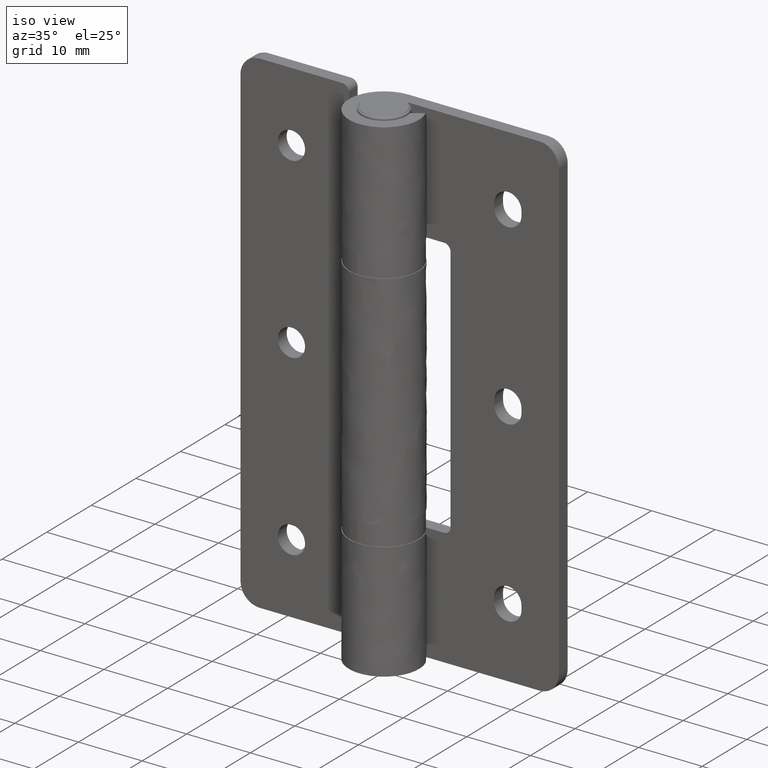
[diagram: clean part render]
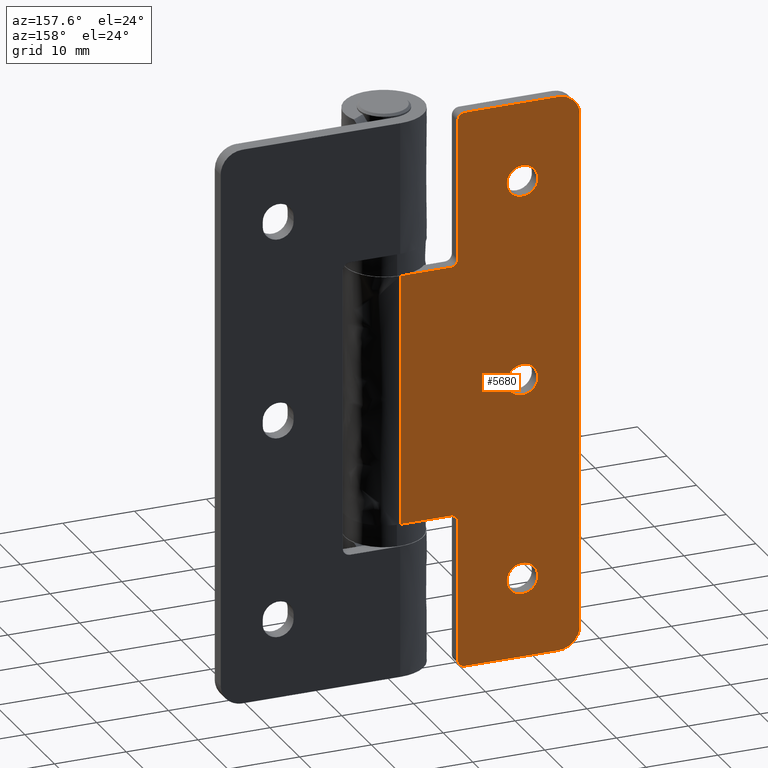
[diagram: tour spotlight — one face highlighted and labeled with its STEP entity id]
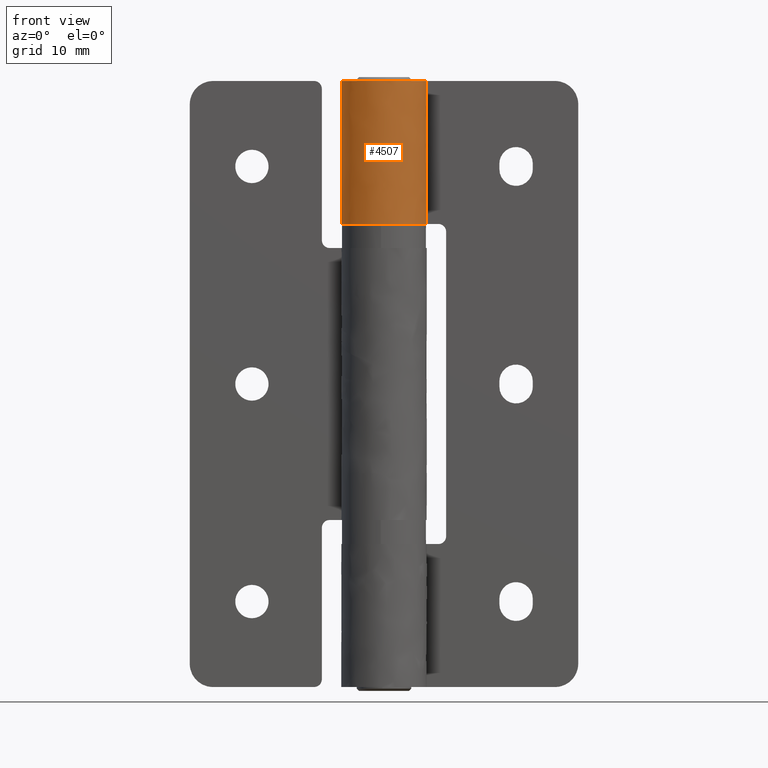
[diagram: tour spotlight — one face highlighted and labeled with its STEP entity id]
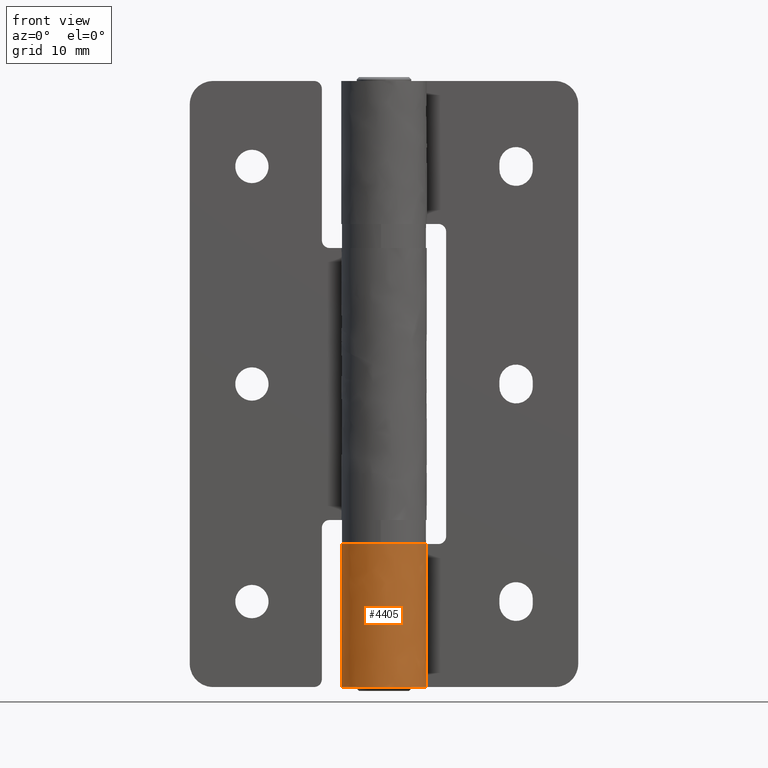
[diagram: tour spotlight — one face highlighted and labeled with its STEP entity id]
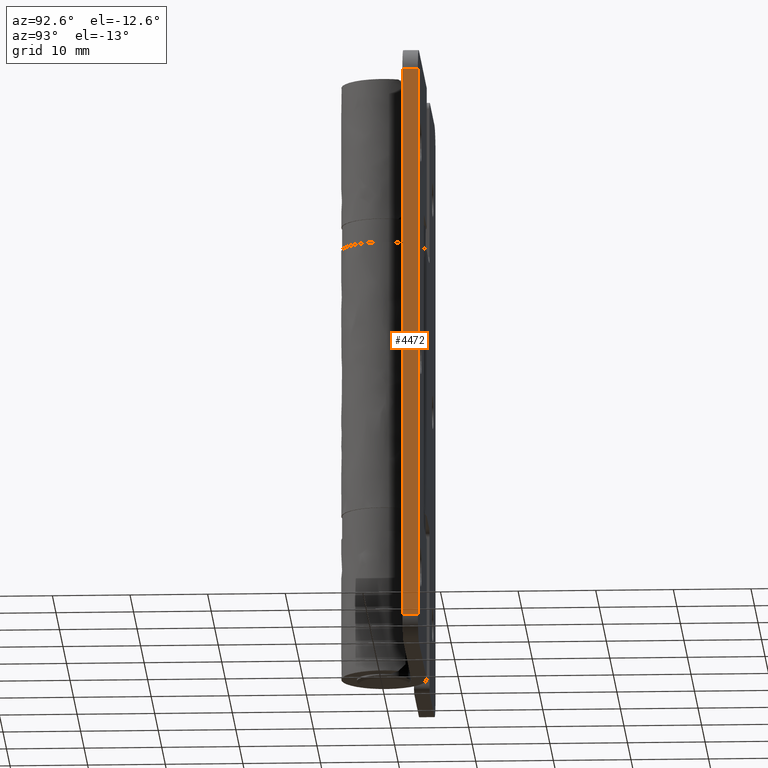
[diagram: tour spotlight — one face highlighted and labeled with its STEP entity id]
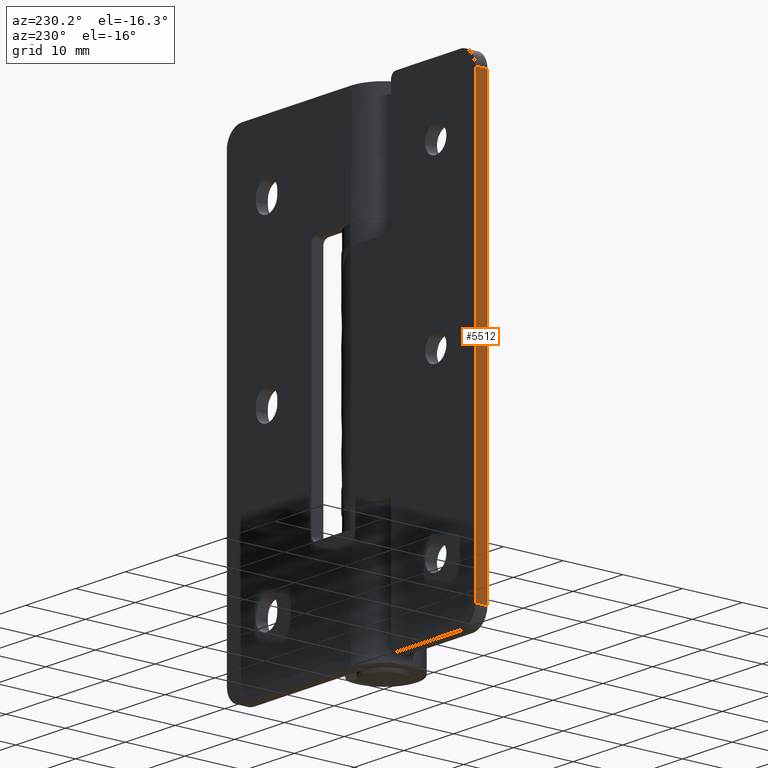
[diagram: tour spotlight — one face highlighted and labeled with its STEP entity id]
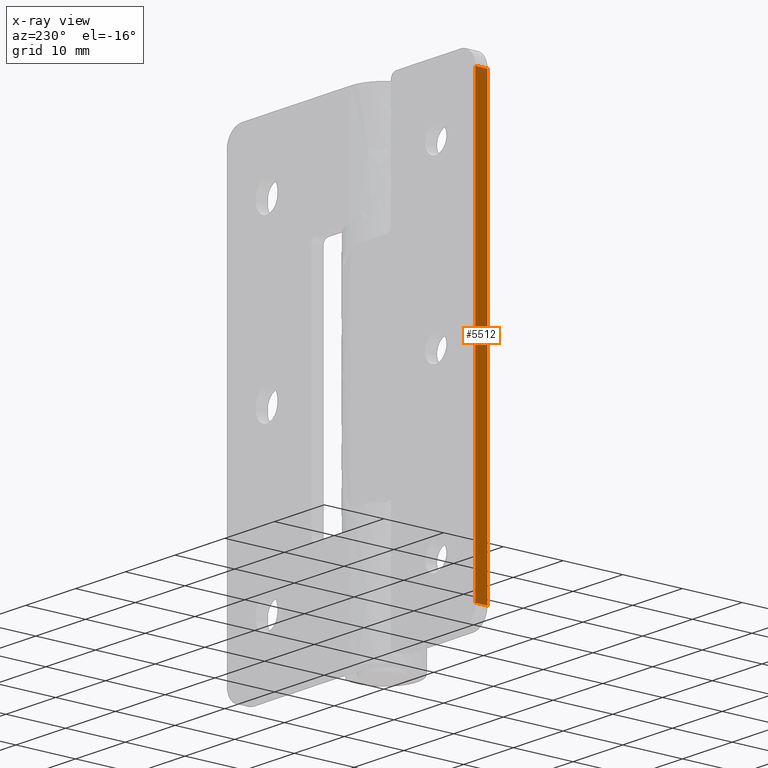
[diagram: x-ray of the same camera — body ghosted, this tour face saturated]
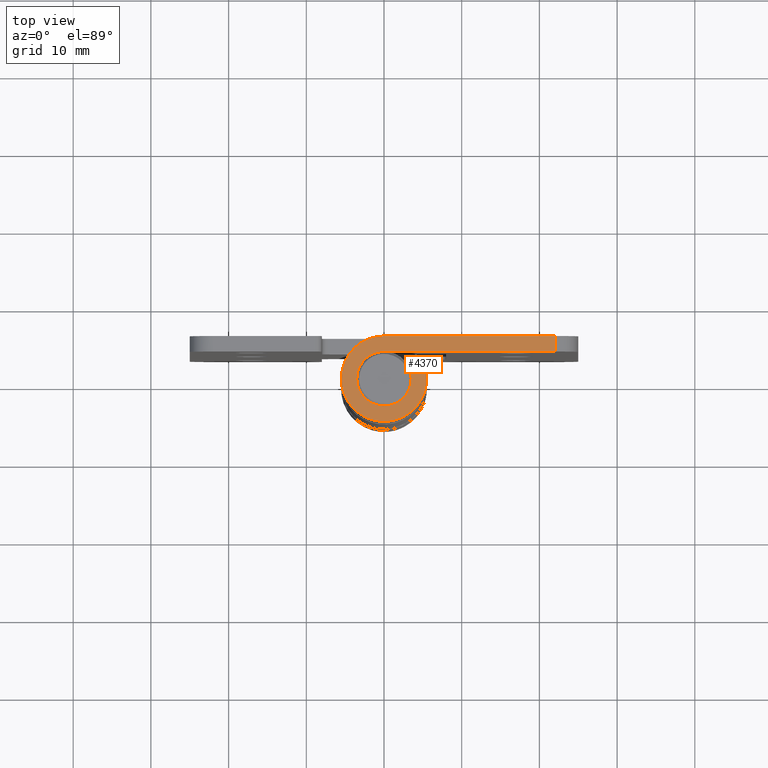
[diagram: tour spotlight — one face highlighted and labeled with its STEP entity id]
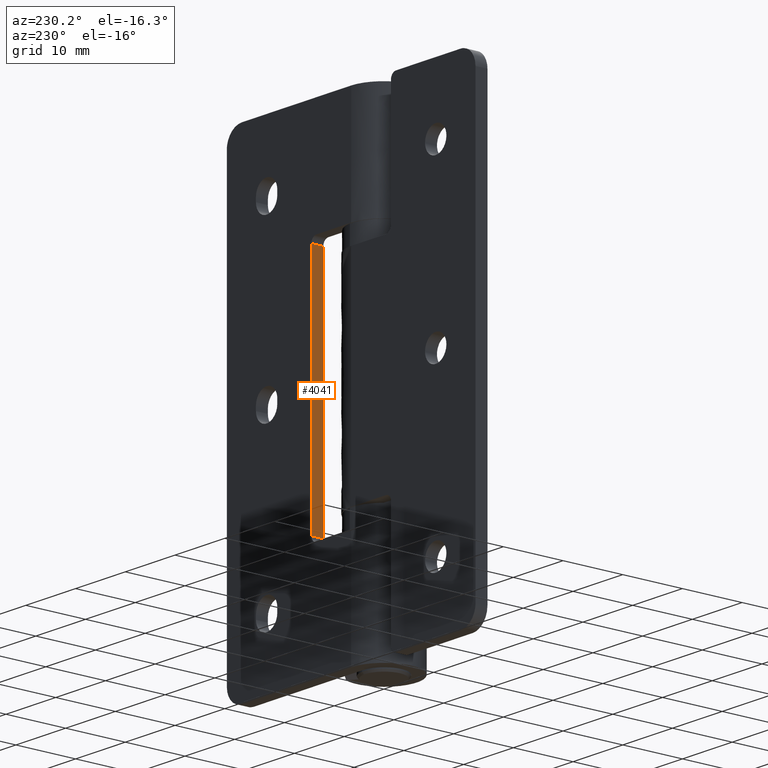
[diagram: tour spotlight — one face highlighted and labeled with its STEP entity id]
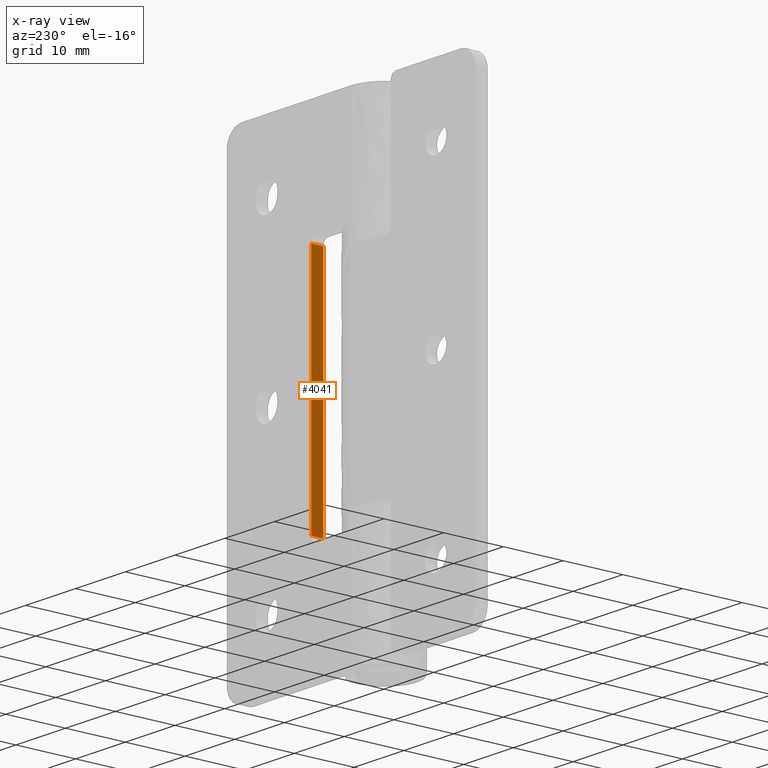
[diagram: x-ray of the same camera — body ghosted, this tour face saturated]
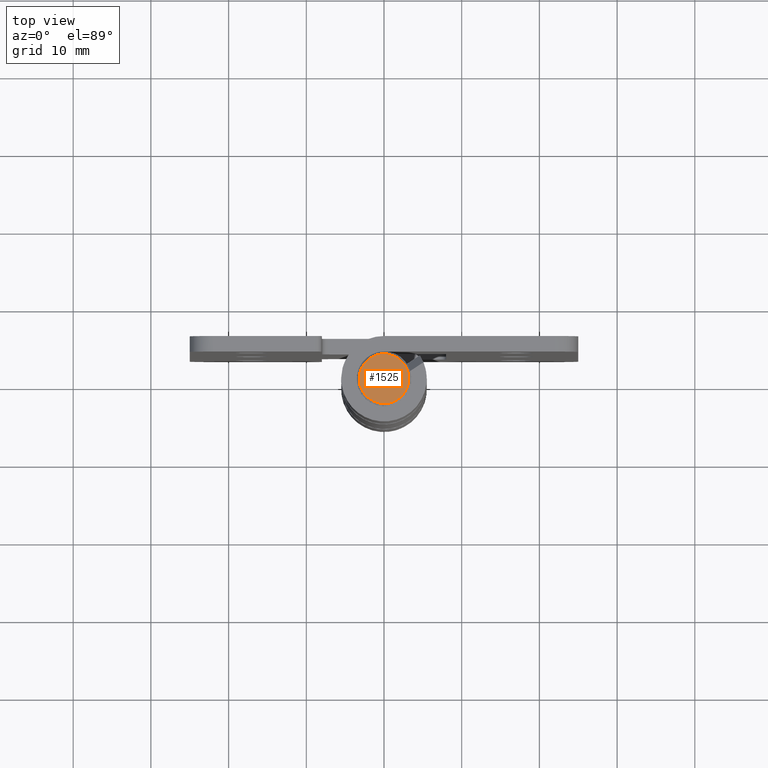
[diagram: tour spotlight — one face highlighted and labeled with its STEP entity id]
A machine part: a face-by-face anatomy tour. The part has 116 B-rep faces; the first image is the clean iso view, then the 8 largest visible faces are spotlighted one at a time (largest first), each with its STEP entity span.

Face 1 — auxiliary view, entity #5680. In plain terms, the highlighted face is a freeform B-spline surface patch.
Definition (entity closure, byte-faithful):
#4634=CARTESIAN_POINT('',(-15.603689226216559,5.500000000000229,37.365125013034572));
#4635=VERTEX_POINT('',#4634);
#4641=CARTESIAN_POINT('',(-19.149999999999999,5.500000000000229,39.0));
#4642=VERTEX_POINT('',#4641);
#4643=CARTESIAN_POINT('',(-19.149999999999999,5.500000000000229,39.0));
#4644=CARTESIAN_POINT('',(-19.150000000000389,5.500000000000229,36.850000000000463));
#4645=CARTESIAN_POINT('',(-17.000000000001219,5.500000000000230,36.850000000001430));
#4646=CARTESIAN_POINT('',(-16.206825014308439,5.500000000000230,36.850000000001792));
#4647=CARTESIAN_POINT('',(-15.603689226216561,5.500000000000230,37.365125013034572));
#4655=(BOUNDED_CURVE()B_SPLINE_CURVE(2,(#4643,#4644,#4645,#4646,#4647),.UNSPECIFIED.,.F.,.U.)B_SPLINE_CURVE_WITH_KNOTS((3,2,3),(0.500000000000000,0.750000000000000,0.863142927474642),.UNSPECIFIED.)CURVE()GEOMETRIC_REPRESENTATION_ITEM()RATIONAL_B_SPLINE_CURVE((1.0,0.707106781186547,1.0,0.867444815143900,0.854871083620292))REPRESENTATION_ITEM(''));
#4656=EDGE_CURVE('',#4642,#4635,#4655,.T.);
#4658=CARTESIAN_POINT('',(-18.396310773783451,5.500000000000229,40.634874986965428));
#4659=VERTEX_POINT('',#4658);
#4660=CARTESIAN_POINT('',(-18.396310773783448,5.500000000000230,40.634874986965428));
#4661=CARTESIAN_POINT('',(-19.149999999999167,5.500000000000230,39.991165593258131));
#4662=CARTESIAN_POINT('',(-19.149999999999999,5.500000000000229,39.0));
#4670=(BOUNDED_CURVE()B_SPLINE_CURVE(2,(#4660,#4661,#4662),.UNSPECIFIED.,.F.,.U.)B_SPLINE_CURVE_WITH_KNOTS((3,3),(0.363142927474643,0.500000000000000),.UNSPECIFIED.)CURVE()GEOMETRIC_REPRESENTATION_ITEM()RATIONAL_B_SPLINE_CURVE((0.854871083620292,0.839661966042648,1.0))REPRESENTATION_ITEM(''));
#4671=EDGE_CURVE('',#4659,#4642,#4670,.T.);
#4749=CARTESIAN_POINT('',(-14.850000000000000,5.500000000000229,39.0));
#4750=VERTEX_POINT('',#4749);
#4751=CARTESIAN_POINT('',(-14.850000000000000,5.500000000000229,39.0));
#4752=CARTESIAN_POINT('',(-14.849999999999618,5.500000000000229,41.149999999999551));
#4753=CARTESIAN_POINT('',(-16.999999999998781,5.500000000000230,41.149999999998570));
#4754=CARTESIAN_POINT('',(-17.793174985691568,5.500000000000230,41.149999999998215));
#4755=CARTESIAN_POINT('',(-18.396310773783448,5.500000000000230,40.634874986965428));
#4763=(BOUNDED_CURVE()B_SPLINE_CURVE(2,(#4751,#4752,#4753,#4754,#4755),.UNSPECIFIED.,.F.,.U.)B_SPLINE_CURVE_WITH_KNOTS((3,2,3),(0.0,0.250000000000000,0.363142927474643),.UNSPECIFIED.)CURVE()GEOMETRIC_REPRESENTATION_ITEM()RATIONAL_B_SPLINE_CURVE((1.0,0.707106781186547,1.0,0.867444815143900,0.854871083620292))REPRESENTATION_ITEM(''));
#4764=EDGE_CURVE('',#4750,#4659,#4763,.T.);
#4766=CARTESIAN_POINT('',(-15.603689226216561,5.500000000000230,37.365125013034572));
#4767=CARTESIAN_POINT('',(-14.850000000000838,5.500000000000229,38.008834406741876));
#4768=CARTESIAN_POINT('',(-14.850000000000000,5.500000000000229,39.0));
#4776=(BOUNDED_CURVE()B_SPLINE_CURVE(2,(#4766,#4767,#4768),.UNSPECIFIED.,.F.,.U.)B_SPLINE_CURVE_WITH_KNOTS((3,3),(0.863142927474642,1.0),.UNSPECIFIED.)CURVE()GEOMETRIC_REPRESENTATION_ITEM()RATIONAL_B_SPLINE_CURVE((0.854871083620292,0.839661966042648,1.0))REPRESENTATION_ITEM(''));
#4777=EDGE_CURVE('',#4635,#4750,#4776,.T.);
#4818=CARTESIAN_POINT('',(-15.603689226216551,5.500000000000229,9.365125013034573));
#4819=VERTEX_POINT('',#4818);
#4825=CARTESIAN_POINT('',(-19.149999999999999,5.500000000000229,11.0));
#4826=VERTEX_POINT('',#4825);
#4827=CARTESIAN_POINT('',(-19.149999999999999,5.500000000000229,11.0));
#4828=CARTESIAN_POINT('',(-19.150000000000389,5.500000000000229,8.850000000000451));
#4829=CARTESIAN_POINT('',(-17.000000000001219,5.500000000000230,8.850000000001430));
#4830=CARTESIAN_POINT('',(-16.206825014308439,5.500000000000230,8.850000000001787));
#4831=CARTESIAN_POINT('',(-15.603689226216549,5.500000000000230,9.365125013034573));
#4839=(BOUNDED_CURVE()B_SPLINE_CURVE(2,(#4827,#4828,#4829,#4830,#4831),.UNSPECIFIED.,.F.,.U.)B_SPLINE_CURVE_WITH_KNOTS((3,2,3),(0.500000000000000,0.750000000000000,0.863142927474643),.UNSPECIFIED.)CURVE()GEOMETRIC_REPRESENTATION_ITEM()RATIONAL_B_SPLINE_CURVE((1.0,0.707106781186547,1.0,0.867444815143900,0.854871083620292))REPRESENTATION_ITEM(''));
#4840=EDGE_CURVE('',#4826,#4819,#4839,.T.);
#4842=CARTESIAN_POINT('',(-18.396310773783451,5.500000000000229,12.634874986965430));
#4843=VERTEX_POINT('',#4842);
#4844=CARTESIAN_POINT('',(-18.396310773783448,5.500000000000229,12.634874986965428));
#4845=CARTESIAN_POINT('',(-19.149999999999164,5.500000000000228,11.991165593258120));
#4846=CARTESIAN_POINT('',(-19.149999999999999,5.500000000000229,11.0));
#4854=(BOUNDED_CURVE()B_SPLINE_CURVE(2,(#4844,#4845,#4846),.UNSPECIFIED.,.F.,.U.)B_SPLINE_CURVE_WITH_KNOTS((3,3),(0.363142927474643,0.500000000000000),.UNSPECIFIED.)CURVE()GEOMETRIC_REPRESENTATION_ITEM()RATIONAL_B_SPLINE_CURVE((0.854871083620292,0.839661966042648,1.0))REPRESENTATION_ITEM(''));
#4855=EDGE_CURVE('',#4843,#4826,#4854,.T.);
#4934=CARTESIAN_POINT('',(-14.850000000000000,5.500000000000229,11.0));
#4935=VERTEX_POINT('',#4934);
#4936=CARTESIAN_POINT('',(-14.850000000000000,5.500000000000229,11.0));
#4937=CARTESIAN_POINT('',(-14.849999999999618,5.500000000000229,13.149999999999547));
#4938=CARTESIAN_POINT('',(-16.999999999998781,5.500000000000229,13.149999999998570));
#4939=CARTESIAN_POINT('',(-17.793174985691564,5.500000000000229,13.149999999998208));
#4940=CARTESIAN_POINT('',(-18.396310773783448,5.500000000000229,12.634874986965428));
#4948=(BOUNDED_CURVE()B_SPLINE_CURVE(2,(#4936,#4937,#4938,#4939,#4940),.UNSPECIFIED.,.F.,.U.)B_SPLINE_CURVE_WITH_KNOTS((3,2,3),(0.0,0.250000000000000,0.363142927474643),.UNSPECIFIED.)CURVE()GEOMETRIC_REPRESENTATION_ITEM()RATIONAL_B_SPLINE_CURVE((1.0,0.707106781186547,1.0,0.867444815143899,0.854871083620292))REPRESENTATION_ITEM(''));
#4949=EDGE_CURVE('',#4935,#4843,#4948,.T.);
#4951=CARTESIAN_POINT('',(-15.603689226216549,5.500000000000230,9.365125013034573));
#4952=CARTESIAN_POINT('',(-14.850000000000845,5.500000000000230,10.008834406741876));
#4953=CARTESIAN_POINT('',(-14.850000000000000,5.500000000000229,11.0));
#4961=(BOUNDED_CURVE()B_SPLINE_CURVE(2,(#4951,#4952,#4953),.UNSPECIFIED.,.F.,.U.)B_SPLINE_CURVE_WITH_KNOTS((3,3),(0.863142927474643,1.0),.UNSPECIFIED.)CURVE()GEOMETRIC_REPRESENTATION_ITEM()RATIONAL_B_SPLINE_CURVE((0.854871083620292,0.839661966042648,1.0))REPRESENTATION_ITEM(''));
#4962=EDGE_CURVE('',#4819,#4935,#4961,.T.);
#5003=CARTESIAN_POINT('',(-15.603689226216559,5.500000000000229,65.365125013034572));
#5004=VERTEX_POINT('',#5003);
#5010=CARTESIAN_POINT('',(-19.149999999999999,5.500000000000229,67.0));
#5011=VERTEX_POINT('',#5010);
#5012=CARTESIAN_POINT('',(-19.149999999999999,5.500000000000229,67.0));
#5013=CARTESIAN_POINT('',(-19.150000000000389,5.500000000000229,64.850000000000463));
#5014=CARTESIAN_POINT('',(-17.000000000001219,5.500000000000230,64.850000000001444));
#5015=CARTESIAN_POINT('',(-16.206825014308439,5.500000000000230,64.850000000001799));
#5016=CARTESIAN_POINT('',(-15.603689226216561,5.500000000000230,65.365125013034572));
#5024=(BOUNDED_CURVE()B_SPLINE_CURVE(2,(#5012,#5013,#5014,#5015,#5016),.UNSPECIFIED.,.F.,.U.)B_SPLINE_CURVE_WITH_KNOTS((3,2,3),(0.500000000000000,0.750000000000000,0.863142927474642),.UNSPECIFIED.)CURVE()GEOMETRIC_REPRESENTATION_ITEM()RATIONAL_B_SPLINE_CURVE((1.0,0.707106781186547,1.0,0.867444815143900,0.854871083620292))REPRESENTATION_ITEM(''));
#5025=EDGE_CURVE('',#5011,#5004,#5024,.T.);
#5027=CARTESIAN_POINT('',(-18.396310773783451,5.500000000000229,68.634874986965428));
#5028=VERTEX_POINT('',#5027);
#5029=CARTESIAN_POINT('',(-18.396310773783451,5.500000000000230,68.634874986965428));
#5030=CARTESIAN_POINT('',(-19.149999999999157,5.500000000000229,67.991165593258117));
#5031=CARTESIAN_POINT('',(-19.149999999999999,5.500000000000229,67.0));
#5039=(BOUNDED_CURVE()B_SPLINE_CURVE(2,(#5029,#5030,#5031),.UNSPECIFIED.,.F.,.U.)B_SPLINE_CURVE_WITH_KNOTS((3,3),(0.363142927474644,0.500000000000000),.UNSPECIFIED.)CURVE()GEOMETRIC_REPRESENTATION_ITEM()RATIONAL_B_SPLINE_CURVE((0.854871083620292,0.839661966042649,1.0))REPRESENTATION_ITEM(''));
#5040=EDGE_CURVE('',#5028,#5011,#5039,.T.);
#5119=CARTESIAN_POINT('',(-14.850000000000000,5.500000000000229,67.0));
#5120=VERTEX_POINT('',#5119);
#5121=CARTESIAN_POINT('',(-14.850000000000000,5.500000000000229,67.0));
#5122=CARTESIAN_POINT('',(-14.849999999999618,5.500000000000229,69.149999999999551));
#5123=CARTESIAN_POINT('',(-16.999999999998771,5.500000000000228,69.149999999998585));
#5124=CARTESIAN_POINT('',(-17.793174985691564,5.500000000000228,69.149999999998229));
#5125=CARTESIAN_POINT('',(-18.396310773783451,5.500000000000230,68.634874986965428));
#5133=(BOUNDED_CURVE()B_SPLINE_CURVE(2,(#5121,#5122,#5123,#5124,#5125),.UNSPECIFIED.,.F.,.U.)B_SPLINE_CURVE_WITH_KNOTS((3,2,3),(0.0,0.250000000000000,0.363142927474644),.UNSPECIFIED.)CURVE()GEOMETRIC_REPRESENTATION_ITEM()RATIONAL_B_SPLINE_CURVE((1.0,0.707106781186547,1.0,0.867444815143899,0.854871083620292))REPRESENTATION_ITEM(''));
#5134=EDGE_CURVE('',#5120,#5028,#5133,.T.);
#5136=CARTESIAN_POINT('',(-15.603689226216561,5.500000000000230,65.365125013034572));
#5137=CARTESIAN_POINT('',(-14.850000000000838,5.500000000000229,66.008834406741883));
#5138=CARTESIAN_POINT('',(-14.850000000000000,5.500000000000229,67.0));
#5146=(BOUNDED_CURVE()B_SPLINE_CURVE(2,(#5136,#5137,#5138),.UNSPECIFIED.,.F.,.U.)B_SPLINE_CURVE_WITH_KNOTS((3,3),(0.863142927474642,1.0),.UNSPECIFIED.)CURVE()GEOMETRIC_REPRESENTATION_ITEM()RATIONAL_B_SPLINE_CURVE((0.854871083620292,0.839661966042648,1.0))REPRESENTATION_ITEM(''));
#5147=EDGE_CURVE('',#5004,#5120,#5146,.T.);
#5184=CARTESIAN_POINT('',(-9.0,5.500000000000229,0.0));
#5185=VERTEX_POINT('',#5184);
#5191=CARTESIAN_POINT('',(-8.0,5.500000000000229,0.999999999999915));
#5192=VERTEX_POINT('',#5191);
#5193=CARTESIAN_POINT('',(-8.0,5.500000000000229,0.999999999999915));
#5194=CARTESIAN_POINT('',(-8.0,5.500000000000279,-8.500145E-014));
#5195=CARTESIAN_POINT('',(-9.0,5.500000000000280,-8.500145E-014));
#5203=(BOUNDED_CURVE()B_SPLINE_CURVE(2,(#5193,#5194,#5195),.UNSPECIFIED.,.F.,.U.)CURVE()GEOMETRIC_REPRESENTATION_ITEM()QUASI_UNIFORM_CURVE()RATIONAL_B_SPLINE_CURVE((1.0,0.707106781186548,1.0))REPRESENTATION_ITEM(''));
#5204=EDGE_CURVE('',#5192,#5185,#5203,.T.);
#5245=CARTESIAN_POINT('',(-8.0,5.500000000000229,77.0));
#5246=VERTEX_POINT('',#5245);
#5252=CARTESIAN_POINT('',(-9.0,5.500000000000229,78.0));
#5253=VERTEX_POINT('',#5252);
#5254=CARTESIAN_POINT('',(-9.0,5.500000000000229,78.0));
#5255=CARTESIAN_POINT('',(-8.0,5.500000000000229,78.0));
#5256=CARTESIAN_POINT('',(-8.0,5.500000000000229,77.0));
#5264=(BOUNDED_CURVE()B_SPLINE_CURVE(2,(#5254,#5255,#5256),.UNSPECIFIED.,.F.,.U.)CURVE()GEOMETRIC_REPRESENTATION_ITEM()QUASI_UNIFORM_CURVE()RATIONAL_B_SPLINE_CURVE((1.0,0.707106781186548,1.0))REPRESENTATION_ITEM(''));
#5265=EDGE_CURVE('',#5253,#5246,#5264,.T.);
#5289=CARTESIAN_POINT('',(-25.0,5.500000000000229,75.0));
#5290=VERTEX_POINT('',#5289);
#5291=CARTESIAN_POINT('',(-22.000000000000249,5.500000000000229,78.0));
#5292=VERTEX_POINT('',#5291);
#5293=CARTESIAN_POINT('',(-25.0,5.500000000000229,75.0));
#5294=CARTESIAN_POINT('',(-25.000000000000256,5.500000000000229,78.0));
#5295=CARTESIAN_POINT('',(-22.000000000000249,5.500000000000229,78.0));
#5303=(BOUNDED_CURVE()B_SPLINE_CURVE(2,(#5293,#5294,#5295),.UNSPECIFIED.,.F.,.U.)CURVE()GEOMETRIC_REPRESENTATION_ITEM()QUASI_UNIFORM_CURVE()RATIONAL_B_SPLINE_CURVE((1.0,0.707106781186548,1.0))REPRESENTATION_ITEM(''));
#5304=EDGE_CURVE('',#5290,#5292,#5303,.T.);
#5350=CARTESIAN_POINT('',(-22.000000000000249,5.500000000000229,0.0));
#5351=VERTEX_POINT('',#5350);
#5352=CARTESIAN_POINT('',(-25.0,5.500000000000229,2.999999999999890));
#5353=VERTEX_POINT('',#5352);
#5354=CARTESIAN_POINT('',(-22.000000000000249,5.500000000000229,0.0));
#5355=CARTESIAN_POINT('',(-25.000000000000256,5.500000000000229,-1.101549E-013));
#5356=CARTESIAN_POINT('',(-25.000000000000249,5.500000000000229,2.999999999999890));
#5364=(BOUNDED_CURVE()B_SPLINE_CURVE(2,(#5354,#5355,#5356),.UNSPECIFIED.,.F.,.U.)CURVE()GEOMETRIC_REPRESENTATION_ITEM()QUASI_UNIFORM_CURVE()RATIONAL_B_SPLINE_CURVE((1.0,0.707106781186548,1.0))REPRESENTATION_ITEM(''));
#5365=EDGE_CURVE('',#5351,#5353,#5364,.T.);
#5410=CARTESIAN_POINT('',(-8.0,5.500000000000229,20.500000000000298));
#5411=VERTEX_POINT('',#5410);
#5412=CARTESIAN_POINT('',(-8.0,5.500000000000229,0.999999999999915));
#5413=CARTESIAN_POINT('',(-8.0,5.500000000000229,20.500000000000298));
#5414=QUASI_UNIFORM_CURVE('',1,(#5412,#5413),.UNSPECIFIED.,.F.,.U.);
#5415=EDGE_CURVE('',#5192,#5411,#5414,.T.);
#5430=CARTESIAN_POINT('',(-8.0,5.500000000000229,57.500000000000000));
#5431=VERTEX_POINT('',#5430);
#5432=CARTESIAN_POINT('',(-8.0,5.500000000000229,57.500000000000000));
#5433=CARTESIAN_POINT('',(-8.0,5.500000000000229,77.0));
#5434=QUASI_UNIFORM_CURVE('',1,(#5432,#5433),.UNSPECIFIED.,.F.,.U.);
#5435=EDGE_CURVE('',#5431,#5246,#5434,.T.);
#5458=CARTESIAN_POINT('',(-9.0,5.500000000000229,0.0));
#5459=CARTESIAN_POINT('',(-22.000000000000249,5.500000000000229,0.0));
#5460=QUASI_UNIFORM_CURVE('',1,(#5458,#5459),.UNSPECIFIED.,.F.,.U.);
#5461=EDGE_CURVE('',#5185,#5351,#5460,.T.);
#5484=CARTESIAN_POINT('',(-9.0,5.500000000000229,78.0));
#5485=CARTESIAN_POINT('',(-22.000000000000249,5.500000000000229,78.0));
#5486=QUASI_UNIFORM_CURVE('',1,(#5484,#5485),.UNSPECIFIED.,.F.,.U.);
#5487=EDGE_CURVE('',#5253,#5292,#5486,.T.);
#5498=CARTESIAN_POINT('',(-25.0,5.500000000000229,75.0));
#5499=CARTESIAN_POINT('',(-25.0,5.500000000000229,2.999999999999890));
#5500=QUASI_UNIFORM_CURVE('',1,(#5498,#5499),.UNSPECIFIED.,.F.,.U.);
#5501=EDGE_CURVE('',#5290,#5353,#5500,.T.);
#5597=CARTESIAN_POINT('',(-26.248749951545140,5.500000000000229,81.896099848820882));
#5598=CARTESIAN_POINT('',(-26.248749951545140,5.500000000000229,-3.896101940943893));
#5599=CARTESIAN_POINT('',(1.248750622097164,5.500000000000229,81.896099848820867));
#5600=CARTESIAN_POINT('',(1.248750622097164,5.500000000000229,-3.896101940943893));
#5601=B_SPLINE_SURFACE_WITH_KNOTS('',1,1,((#5597,#5599),(#5598,#5600)),.UNSPECIFIED.,.F.,.F.,.U.,(2,2),(2,2),(0.0,85.792201789764775),(0.0,27.497500573642299),.UNSPECIFIED.);
#5602=ORIENTED_EDGE('',*,*,#5487,.F.);
#5603=ORIENTED_EDGE('',*,*,#5265,.T.);
#5604=ORIENTED_EDGE('',*,*,#5435,.F.);
#5605=CARTESIAN_POINT('',(-7.0,5.500000000000229,56.500000000000000));
#5606=VERTEX_POINT('',#5605);
#5607=CARTESIAN_POINT('',(-8.0,5.500000000000280,57.500000000000000));
#5608=CARTESIAN_POINT('',(-8.0,5.500000000000279,56.500000000000000));
#5609=CARTESIAN_POINT('',(-7.0,5.500000000000280,56.500000000000000));
#5617=(BOUNDED_CURVE()B_SPLINE_CURVE(2,(#5607,#5608,#5609),.UNSPECIFIED.,.F.,.U.)CURVE()GEOMETRIC_REPRESENTATION_ITEM()QUASI_UNIFORM_CURVE()RATIONAL_B_SPLINE_CURVE((1.0,0.707106781186548,1.0))REPRESENTATION_ITEM(''));
#5618=EDGE_CURVE('',#5431,#5606,#5617,.T.);
#5619=ORIENTED_EDGE('',*,*,#5618,.T.);
#5620=CARTESIAN_POINT('',(-2.273737E-013,5.500000000000229,56.500000000000000));
#5621=VERTEX_POINT('',#5620);
#5622=CARTESIAN_POINT('',(-2.273737E-013,5.500000000000229,56.500000000000000));
#5623=CARTESIAN_POINT('',(-7.0,5.500000000000229,56.500000000000000));
#5624=QUASI_UNIFORM_CURVE('',1,(#5622,#5623),.UNSPECIFIED.,.F.,.U.);
#5625=EDGE_CURVE('',#5621,#5606,#5624,.T.);
#5626=ORIENTED_EDGE('',*,*,#5625,.F.);
#5627=CARTESIAN_POINT('',(-2.273737E-013,5.500000000000229,21.500000000000298));
#5628=VERTEX_POINT('',#5627);
#5629=CARTESIAN_POINT('',(-2.273737E-013,5.500000000000229,56.500000000000000));
#5630=CARTESIAN_POINT('',(-2.273737E-013,5.500000000000229,21.500000000000298));
#5631=QUASI_UNIFORM_CURVE('',1,(#5629,#5630),.UNSPECIFIED.,.F.,.U.);
#5632=EDGE_CURVE('',#5621,#5628,#5631,.T.);
#5633=ORIENTED_EDGE('',*,*,#5632,.T.);
#5634=CARTESIAN_POINT('',(-7.0,5.500000000000229,21.500000000000298));
#5635=VERTEX_POINT('',#5634);
#5636=CARTESIAN_POINT('',(-7.0,5.500000000000229,21.500000000000298));
#5637=CARTESIAN_POINT('',(-2.273737E-013,5.500000000000229,21.500000000000298));
#5638=QUASI_UNIFORM_CURVE('',1,(#5636,#5637),.UNSPECIFIED.,.F.,.U.);
#5639=EDGE_CURVE('',#5635,#5628,#5638,.T.);
#5640=ORIENTED_EDGE('',*,*,#5639,.F.);
#5641=CARTESIAN_POINT('',(-7.0,5.500000000000229,21.500000000000298));
#5642=CARTESIAN_POINT('',(-8.0,5.500000000000279,21.500000000000291));
#5643=CARTESIAN_POINT('',(-8.0,5.500000000000280,20.500000000000298));
#5651=(BOUNDED_CURVE()B_SPLINE_CURVE(2,(#5641,#5642,#5643),.UNSPECIFIED.,.F.,.U.)CURVE()GEOMETRIC_REPRESENTATION_ITEM()QUASI_UNIFORM_CURVE()RATIONAL_B_SPLINE_CURVE((1.0,0.707106781186548,1.0))REPRESENTATION_ITEM(''));
#5652=EDGE_CURVE('',#5635,#5411,#5651,.T.);
#5653=ORIENTED_EDGE('',*,*,#5652,.T.);
#5654=ORIENTED_EDGE('',*,*,#5415,.F.);
#5655=ORIENTED_EDGE('',*,*,#5204,.T.);
#5656=ORIENTED_EDGE('',*,*,#5461,.T.);
#5657=ORIENTED_EDGE('',*,*,#5365,.T.);
#5658=ORIENTED_EDGE('',*,*,#5501,.F.);
#5659=ORIENTED_EDGE('',*,*,#5304,.T.);
#5660=EDGE_LOOP('',(#5602,#5603,#5604,#5619,#5626,#5633,#5640,#5653,#5654,#5655,#5656,#5657,#5658,#5659));
#5661=FACE_OUTER_BOUND('',#5660,.T.);
#5662=ORIENTED_EDGE('',*,*,#5134,.T.);
#5663=ORIENTED_EDGE('',*,*,#5040,.T.);
#5664=ORIENTED_EDGE('',*,*,#5025,.T.);
#5665=ORIENTED_EDGE('',*,*,#5147,.T.);
#5666=EDGE_LOOP('',(#5662,#5663,#5664,#5665));
#5667=FACE_BOUND('',#5666,.T.);
#5668=ORIENTED_EDGE('',*,*,#4949,.T.);
#5669=ORIENTED_EDGE('',*,*,#4855,.T.);
#5670=ORIENTED_EDGE('',*,*,#4840,.T.);
#5671=ORIENTED_EDGE('',*,*,#4962,.T.);
#5672=EDGE_LOOP('',(#5668,#5669,#5670,#5671));
#5673=FACE_BOUND('',#5672,.T.);
#5674=ORIENTED_EDGE('',*,*,#4764,.T.);
#5675=ORIENTED_EDGE('',*,*,#4671,.T.);
#5676=ORIENTED_EDGE('',*,*,#4656,.T.);
#5677=ORIENTED_EDGE('',*,*,#4777,.T.);
#5678=EDGE_LOOP('',(#5674,#5675,#5676,#5677));
#5679=FACE_BOUND('',#5678,.T.);
#5680=ADVANCED_FACE('',(#5661,#5667,#5673,#5679),#5601,.F.);

Face 2 — front view, entity #4507. In plain terms, the highlighted face is a freeform B-spline surface patch.
Definition (entity closure, byte-faithful):
#2987=CARTESIAN_POINT('',(-1.010298E-015,5.500000000000229,59.600000000000001));
#2988=VERTEX_POINT('',#2987);
#2994=CARTESIAN_POINT('',(-1.010300E-015,5.500000000000000,78.0));
#2995=VERTEX_POINT('',#2994);
#2996=CARTESIAN_POINT('',(-1.010300E-015,5.500000000000000,78.0));
#2997=CARTESIAN_POINT('',(-1.010298E-015,5.500000000000229,59.600000000000001));
#2998=QUASI_UNIFORM_CURVE('',1,(#2996,#2997),.UNSPECIFIED.,.F.,.U.);
#2999=EDGE_CURVE('',#2995,#2988,#2998,.T.);
#3228=CARTESIAN_POINT('',(5.078391855980350,2.111856092898495,78.0));
#3229=VERTEX_POINT('',#3228);
#3235=CARTESIAN_POINT('',(4.609772228646420,3.000000000000035,77.0));
#3236=VERTEX_POINT('',#3235);
#3237=CARTESIAN_POINT('',(4.609772228646436,3.000000000000013,77.0));
#3238=CARTESIAN_POINT('',(4.884791489058476,2.577407950336580,77.504201977422099));
#3239=CARTESIAN_POINT('',(5.078391855980344,2.111856092898499,78.000000000000014));
#3247=(BOUNDED_CURVE()B_SPLINE_CURVE(2,(#3237,#3238,#3239),.UNSPECIFIED.,.F.,.U.)CURVE()GEOMETRIC_REPRESENTATION_ITEM()QUASI_UNIFORM_CURVE()RATIONAL_B_SPLINE_CURVE((1.0,0.995824323371273,1.0))REPRESENTATION_ITEM(''));
#3248=EDGE_CURVE('',#3236,#3229,#3247,.T.);
#3332=CARTESIAN_POINT('',(4.609772228646420,3.000000000000035,60.600000000000001));
#3333=VERTEX_POINT('',#3332);
#3339=CARTESIAN_POINT('',(5.078391855980420,2.111856092898340,59.600000000000001));
#3340=VERTEX_POINT('',#3339);
#3341=CARTESIAN_POINT('',(5.078391855980376,2.111856092898421,59.599999999999909));
#3342=CARTESIAN_POINT('',(4.884791489058486,2.577407950336573,60.095798022577867));
#3343=CARTESIAN_POINT('',(4.609772228646401,3.000000000000065,60.600000000000001));
#3351=(BOUNDED_CURVE()B_SPLINE_CURVE(2,(#3341,#3342,#3343),.UNSPECIFIED.,.F.,.U.)CURVE()GEOMETRIC_REPRESENTATION_ITEM()QUASI_UNIFORM_CURVE()RATIONAL_B_SPLINE_CURVE((1.0,0.995824323371236,1.0))REPRESENTATION_ITEM(''));
#3352=EDGE_CURVE('',#3340,#3333,#3351,.T.);
#4164=CARTESIAN_POINT('',(-1.010298E-015,5.500000000000229,59.600000000000001));
#4165=CARTESIAN_POINT('',(-0.566870908820096,5.500319323415684,59.600000000000151));
#4166=CARTESIAN_POINT('',(-1.426049190043263,5.365892515354370,59.599999999999937));
#4167=CARTESIAN_POINT('',(-2.563254246476472,4.899781130820440,59.599999999999731));
#4168=CARTESIAN_POINT('',(-3.337544757026490,4.405127884861921,59.600000000000890));
#4169=CARTESIAN_POINT('',(-4.015537949657388,3.788446514830869,59.599999999998921));
#4170=CARTESIAN_POINT('',(-4.513425928891483,3.176690755691426,59.600000000000328));
#4171=CARTESIAN_POINT('',(-4.964511727736221,2.421671078968893,59.600000000000087));
#4172=CARTESIAN_POINT('',(-5.304273954458707,1.568498734419569,59.600000000000009));
#4173=CARTESIAN_POINT('',(-5.478048132799610,0.685874798277560,59.599999999999980));
#4174=CARTESIAN_POINT('',(-5.522460179914042,-0.302313962339906,59.599999999999987));
#4175=CARTESIAN_POINT('',(-5.386459974170384,-1.306034635886265,59.600000000000072));
#4176=CARTESIAN_POINT('',(-5.040802096079391,-2.255277352931479,59.599999999999980));
#4177=CARTESIAN_POINT('',(-4.598712223335083,-3.057421320270615,59.599999999999987));
#4178=CARTESIAN_POINT('',(-4.025680772076812,-3.798420721270719,59.599999999999987));
#4179=CARTESIAN_POINT('',(-3.250672952281020,-4.475404005859986,59.600000000000001));
#4180=CARTESIAN_POINT('',(-2.444841627442906,-4.951302789805934,59.600000000000023));
#4181=CARTESIAN_POINT('',(-1.661491541073445,-5.263193312704070,59.599999999999952));
#4182=CARTESIAN_POINT('',(-0.930237493609089,-5.437717265173488,59.600000000000037));
#4183=CARTESIAN_POINT('',(-0.110013686355602,-5.519732494675481,59.600000000000023));
#4184=CARTESIAN_POINT('',(0.660086749456795,-5.481232649508733,59.599999999999973));
#4185=CARTESIAN_POINT('',(1.539853883930143,-5.303285967048876,59.600000000000037));
#4186=CARTESIAN_POINT('',(2.383998093836078,-4.991198142569481,59.599999999999973));
#4187=CARTESIAN_POINT('',(3.203442884959564,-4.501439089021388,59.600000000000023));
#4188=CARTESIAN_POINT('',(3.972705675870018,-3.849296693376112,59.599999999999973));
#4189=CARTESIAN_POINT('',(4.506774425614577,-3.192982295056920,59.600000000000087));
#4190=CARTESIAN_POINT('',(4.968190633140786,-2.402629252512812,59.599999999999810));
#4191=CARTESIAN_POINT('',(5.288526538587220,-1.620811783330258,59.600000000000669));
#4192=CARTESIAN_POINT('',(5.471013606055839,-0.739930213427775,59.599999999999049));
#4193=CARTESIAN_POINT('',(5.522136037940106,0.192887773385943,59.600000000001593));
#4194=CARTESIAN_POINT('',(5.419338167230701,1.124876735270279,59.599999999997571));
#4195=CARTESIAN_POINT('',(5.204787472151589,1.807967334772823,59.600000000000321));
#4196=CARTESIAN_POINT('',(5.078391855980420,2.111856092898340,59.600000000000001));
#4197=B_SPLINE_CURVE_WITH_KNOTS('',3,(#4164,#4165,#4166,#4167,#4168,#4169,#4170,#4171,#4172,#4173,#4174,#4175,#4176,#4177,#4178,#4179,#4180,#4181,#4182,#4183,#4184,#4185,#4186,#4187,#4188,#4189,#4190,#4191,#4192,#4193,#4194,#4195,#4196),.UNSPECIFIED.,.F.,.U.,(4,1,1,1,1,1,1,1,1,1,1,1,1,1,1,1,1,1,1,1,1,1,1,1,1,1,1,1,1,1,4),(0.000000355150373,1.700478181514828,2.578173556885151,3.675291127794985,4.443275964609637,5.320968830674374,6.034061038941577,7.076260071766669,8.063655349210649,8.721939374777332,10.038472465980480,11.080723254989209,11.739001591012460,12.781259976688110,13.878339298349159,14.810824753399670,15.578803474859191,16.401656745971540,17.059912853755261,18.047319846976070,18.705575955810630,19.747829261468919,20.735222232527349,21.558019999283982,22.764817899354892,23.258534234928280,24.300785010284120,25.288180601504859,25.946460450075069,27.098399105080919,28.085784939907459),.UNSPECIFIED.);
#4198=EDGE_CURVE('',#2988,#3340,#4197,.T.);
#4296=CARTESIAN_POINT('',(-1.010300E-015,5.500000000000000,78.0));
#4297=CARTESIAN_POINT('',(-0.475413707816759,5.500152063646950,78.000000000000043));
#4298=CARTESIAN_POINT('',(-1.261590357472479,5.397390236359740,77.999999999999986));
#4299=CARTESIAN_POINT('',(-2.177153610927185,5.069259429241953,78.000000000000128));
#4300=CARTESIAN_POINT('',(-2.892126011533962,4.698160573925146,77.999999999999588));
#4301=CARTESIAN_POINT('',(-3.702592269826527,4.127895430800244,78.000000000000810));
#4302=CARTESIAN_POINT('',(-4.521860705010584,3.226923246993142,77.999999999999332));
#4303=CARTESIAN_POINT('',(-5.105796492070756,2.141536159971466,78.000000000000270));
#4304=CARTESIAN_POINT('',(-5.435823296404848,1.052185271152333,77.999999999999432));
#4305=CARTESIAN_POINT('',(-5.531488557203923,0.045011995098237,78.000000000000441));
#4306=CARTESIAN_POINT('',(-5.437729717196560,-0.995954256742960,77.999999999998778));
#4307=CARTESIAN_POINT('',(-5.154515889762509,-2.042497999105390,78.000000000000355));
#4308=CARTESIAN_POINT('',(-4.580656065397269,-3.134856312947785,77.999999999999915));
#4309=CARTESIAN_POINT('',(-3.817620759799606,-4.007944819433793,78.0));
#4310=CARTESIAN_POINT('',(-2.917890023079258,-4.703605505290469,78.000000000000057));
#4311=CARTESIAN_POINT('',(-2.012509707558019,-5.156332243541700,78.000000000000028));
#4312=CARTESIAN_POINT('',(-0.951514174876095,-5.449048403479035,77.999999999999986));
#4313=CARTESIAN_POINT('',(0.037734879794731,-5.532995421827941,78.000000000000014));
#4314=CARTESIAN_POINT('',(1.205785585758324,-5.410219493840184,77.999999999999986));
#4315=CARTESIAN_POINT('',(2.326244600583231,-5.039845333817367,78.000000000000028));
#4316=CARTESIAN_POINT('',(3.280165935199231,-4.450088171861107,77.999999999999972));
#4317=CARTESIAN_POINT('',(4.046315169449717,-3.766979155721104,78.000000000000043));
#4318=CARTESIAN_POINT('',(4.615800837600450,-3.045382542308651,77.999999999999986));
#4319=CARTESIAN_POINT('',(5.063296517846328,-2.203408019052640,78.000000000000199));
#4320=CARTESIAN_POINT('',(5.357953906366597,-1.354253554145710,77.999999999998920));
#4321=CARTESIAN_POINT('',(5.508197608321447,-0.448688036333352,78.000000000003212));
#4322=CARTESIAN_POINT('',(5.502150984797861,0.743632039111803,77.999999999992042));
#4323=CARTESIAN_POINT('',(5.296336494679673,1.588556799932068,78.000000000014566));
#4324=CARTESIAN_POINT('',(5.078391855980350,2.111856092898495,78.0));
#4325=B_SPLINE_CURVE_WITH_KNOTS('',3,(#4296,#4297,#4298,#4299,#4300,#4301,#4302,#4303,#4304,#4305,#4306,#4307,#4308,#4309,#4310,#4311,#4312,#4313,#4314,#4315,#4316,#4317,#4318,#4319,#4320,#4321,#4322,#4323,#4324),.UNSPECIFIED.,.F.,.U.,(4,1,1,1,1,1,1,1,1,1,1,1,1,1,1,1,1,1,1,1,1,1,1,1,1,1,4),(0.000000355012332,1.426201148643877,2.358767298219512,2.907312621187376,3.839859385003553,5.320968830562830,6.527766545976363,7.515139985887142,8.721939374682950,9.544764249851170,10.641881420680420,11.958403675570640,13.220086475996419,14.097707373111730,15.359403440923920,16.237088508199211,17.389049954744412,18.321598173771040,19.747829261429310,20.899782864640130,21.667703196550001,22.819696502683819,23.642510903528709,24.520206260624661,25.507613249888418,26.385306253998039,28.085784939907811),.UNSPECIFIED.);
#4326=EDGE_CURVE('',#2995,#3229,#4325,.T.);
#4473=CARTESIAN_POINT('',(0.143973215693309,5.498115287365563,78.460000000000022));
#4474=CARTESIAN_POINT('',(0.143973215693309,5.498115287365563,59.128500000000003));
#4475=CARTESIAN_POINT('',(-6.726984675535030,5.678037651810464,78.460000000000036));
#4476=CARTESIAN_POINT('',(-6.726984675535030,5.678037651810464,59.128500000000003));
#4477=CARTESIAN_POINT('',(-5.395873946643909,-1.065149919931211,78.460000000000022));
#4478=CARTESIAN_POINT('',(-5.395873946643909,-1.065149919931211,59.128500000000003));
#4479=CARTESIAN_POINT('',(-4.064763217752789,-7.808337491672885,78.460000000000036));
#4480=CARTESIAN_POINT('',(-4.064763217752789,-7.808337491672885,59.128500000000003));
#4481=CARTESIAN_POINT('',(2.222426414929547,-5.030986069372821,78.460000000000022));
#4482=CARTESIAN_POINT('',(2.222426414929547,-5.030986069372821,59.128500000000003));
#4483=CARTESIAN_POINT('',(8.509616047611882,-2.253634647072755,78.460000000000036));
#4484=CARTESIAN_POINT('',(8.509616047611882,-2.253634647072755,59.128500000000003));
#4485=CARTESIAN_POINT('',(4.421212733394699,3.271525327132370,78.460000000000022));
#4486=CARTESIAN_POINT('',(4.421212733394699,3.271525327132370,59.128500000000003));
#4494=(BOUNDED_SURFACE()B_SPLINE_SURFACE(1,2,((#4473,#4475,#4477,#4479,#4481,#4483,#4485),(#4474,#4476,#4478,#4480,#4482,#4484,#4486)),.UNSPECIFIED.,.F.,.F.,.U.)B_SPLINE_SURFACE_WITH_KNOTS((2,2),(3,2,2,3),(0.0,19.331500000000030),(0.0,10.572125807836480,21.144251615672960,31.716377423509439),.UNSPECIFIED.)GEOMETRIC_REPRESENTATION_ITEM()RATIONAL_B_SPLINE_SURFACE(((1.0,0.624788514543960,1.0,0.624788514543960,1.0,0.624788514543960,1.0),(1.0,0.624788514543960,1.0,0.624788514543960,1.0,0.624788514543960,1.0)))REPRESENTATION_ITEM('')SURFACE());
#4495=ORIENTED_EDGE('',*,*,#4198,.T.);
#4496=ORIENTED_EDGE('',*,*,#3352,.T.);
#4497=CARTESIAN_POINT('',(4.609772228646420,3.000000000000035,77.0));
#4498=CARTESIAN_POINT('',(4.609772228646420,3.000000000000035,60.600000000000001));
#4499=QUASI_UNIFORM_CURVE('',1,(#4497,#4498),.UNSPECIFIED.,.F.,.U.);
#4500=EDGE_CURVE('',#3236,#3333,#4499,.T.);
#4501=ORIENTED_EDGE('',*,*,#4500,.F.);
#4502=ORIENTED_EDGE('',*,*,#3248,.T.);
#4503=ORIENTED_EDGE('',*,*,#4326,.F.);
#4504=ORIENTED_EDGE('',*,*,#2999,.T.);
#4505=EDGE_LOOP('',(#4495,#4496,#4501,#4502,#4503,#4504));
#4506=FACE_OUTER_BOUND('',#4505,.T.);
#4507=ADVANCED_FACE('',(#4506),#4494,.T.);

Face 3 — front view, entity #4405. In plain terms, the highlighted face is a freeform B-spline surface patch.
Definition (entity closure, byte-faithful):
#2929=CARTESIAN_POINT('',(-1.010300E-015,5.500000000000000,0.0));
#2930=VERTEX_POINT('',#2929);
#2936=CARTESIAN_POINT('',(-1.010298E-015,5.500000000000229,18.399999999999999));
#2937=VERTEX_POINT('',#2936);
#2938=CARTESIAN_POINT('',(-1.010298E-015,5.500000000000229,18.399999999999999));
#2939=CARTESIAN_POINT('',(-1.010300E-015,5.500000000000000,0.0));
#2940=QUASI_UNIFORM_CURVE('',1,(#2938,#2939),.UNSPECIFIED.,.F.,.U.);
#2941=EDGE_CURVE('',#2937,#2930,#2940,.T.);
#3263=CARTESIAN_POINT('',(4.609772228646420,3.000000000000035,17.399999999999999));
#3264=VERTEX_POINT('',#3263);
#3265=CARTESIAN_POINT('',(5.078391855980300,2.111856092898610,18.399999999999999));
#3266=VERTEX_POINT('',#3265);
#3267=CARTESIAN_POINT('',(4.609772228646420,3.000000000000035,17.399999999999999));
#3268=CARTESIAN_POINT('',(4.884791489058459,2.577407950336599,17.904201977422076));
#3269=CARTESIAN_POINT('',(5.078391855980307,2.111856092898588,18.399999999999970));
#3277=(BOUNDED_CURVE()B_SPLINE_CURVE(2,(#3267,#3268,#3269),.UNSPECIFIED.,.F.,.U.)CURVE()GEOMETRIC_REPRESENTATION_ITEM()QUASI_UNIFORM_CURVE()RATIONAL_B_SPLINE_CURVE((1.0,0.995824323371344,1.0))REPRESENTATION_ITEM(''));
#3278=EDGE_CURVE('',#3264,#3266,#3277,.T.);
#3384=CARTESIAN_POINT('',(4.609772228646420,3.000000000000035,1.0));
#3385=VERTEX_POINT('',#3384);
#3391=CARTESIAN_POINT('',(5.078391855980370,2.111856092898445,0.0));
#3392=VERTEX_POINT('',#3391);
#3393=CARTESIAN_POINT('',(5.078391855980367,2.111856092898445,-2.385245E-015));
#3394=CARTESIAN_POINT('',(4.884791489058491,2.577407950336554,0.495798022577909));
#3395=CARTESIAN_POINT('',(4.609772228646434,3.000000000000014,0.999999999999998));
#3403=(BOUNDED_CURVE()B_SPLINE_CURVE(2,(#3393,#3394,#3395),.UNSPECIFIED.,.F.,.U.)CURVE()GEOMETRIC_REPRESENTATION_ITEM()QUASI_UNIFORM_CURVE()RATIONAL_B_SPLINE_CURVE((1.0,0.995824323371203,1.0))REPRESENTATION_ITEM(''));
#3404=EDGE_CURVE('',#3392,#3385,#3403,.T.);
#4047=CARTESIAN_POINT('',(5.078391855980300,2.111856092898610,18.399999999999999));
#4048=CARTESIAN_POINT('',(5.296324959184794,1.588551576081182,18.399999999999970));
#4049=CARTESIAN_POINT('',(5.493394346806842,0.779594130485288,18.400000000000041));
#4050=CARTESIAN_POINT('',(5.511326071286356,-0.411730552001876,18.399999999999981));
#4051=CARTESIAN_POINT('',(5.381291429894085,-1.246958006002569,18.399999999999991));
#4052=CARTESIAN_POINT('',(5.092720381249665,-2.135495192782631,18.400000000000109));
#4053=CARTESIAN_POINT('',(4.711109910216022,-2.889296094220044,18.400000000000180));
#4054=CARTESIAN_POINT('',(4.099419967549340,-3.714037603229439,18.399999999999910));
#4055=CARTESIAN_POINT('',(3.290484768087180,-4.464889076031629,18.400000000000059));
#4056=CARTESIAN_POINT('',(2.350089830589080,-5.007917381838939,18.400000000000080));
#4057=CARTESIAN_POINT('',(1.399365570003063,-5.343302867665767,18.399999999999640));
#4058=CARTESIAN_POINT('',(0.550383841779389,-5.497480887758728,18.400000000000269));
#4059=CARTESIAN_POINT('',(-0.292992596425293,-5.510144216262153,18.399999999999810));
#4060=CARTESIAN_POINT('',(-1.056617634979133,-5.414510979435393,18.400000000000048));
#4061=CARTESIAN_POINT('',(-1.907078988481051,-5.189038553890031,18.399999999999991));
#4062=CARTESIAN_POINT('',(-2.674455736871631,-4.833583175240202,18.400000000000009));
#4063=CARTESIAN_POINT('',(-3.433567355109765,-4.321612382708580,18.399999999999999));
#4064=CARTESIAN_POINT('',(-4.044776741673032,-3.765827158007423,18.400000000000009));
#4065=CARTESIAN_POINT('',(-4.598167670828204,-3.057568352201225,18.399999999999949));
#4066=CARTESIAN_POINT('',(-5.098394557399584,-2.160789952590464,18.400000000000290));
#4067=CARTESIAN_POINT('',(-5.401184290569497,-1.212924520654979,18.399999999999260));
#4068=CARTESIAN_POINT('',(-5.529169246975510,-0.102129886098690,18.400000000001580));
#4069=CARTESIAN_POINT('',(-5.466069948902678,0.870744676351858,18.399999999999260));
#4070=CARTESIAN_POINT('',(-5.226073198318868,1.775323364587292,18.400000000000141));
#4071=CARTESIAN_POINT('',(-4.909336561959664,2.516452483657360,18.399999999999881));
#4072=CARTESIAN_POINT('',(-4.504969324403606,3.193334447915547,18.400000000000091));
#4073=CARTESIAN_POINT('',(-4.012701310373130,3.785979811106796,18.399999999999959));
#4074=CARTESIAN_POINT('',(-3.405851334761355,4.343494100370136,18.400000000000009));
#4075=CARTESIAN_POINT('',(-2.799113454956715,4.757175053505719,18.399999999999949));
#4076=CARTESIAN_POINT('',(-2.009072532913347,5.142520611662985,18.400000000000311));
#4077=CARTESIAN_POINT('',(-1.115360104116161,5.423103438496866,18.399999999999451));
#4078=CARTESIAN_POINT('',(-0.383986194363432,5.500049698202717,18.399999999999540));
#4079=CARTESIAN_POINT('',(-1.010298E-015,5.500000000000229,18.399999999999999));
#4080=B_SPLINE_CURVE_WITH_KNOTS('',3,(#4047,#4048,#4049,#4050,#4051,#4052,#4053,#4054,#4055,#4056,#4057,#4058,#4059,#4060,#4061,#4062,#4063,#4064,#4065,#4066,#4067,#4068,#4069,#4070,#4071,#4072,#4073,#4074,#4075,#4076,#4077,#4078,#4079),.UNSPECIFIED.,.F.,.U.,(4,1,1,1,1,1,1,1,1,1,1,1,1,1,1,1,1,1,1,1,1,1,1,1,1,1,1,1,1,1,4),(0.000000355141022,1.700478181506277,2.468466464594268,3.565580661043239,4.223844138999041,5.266089335221096,6.088948329615942,7.295679815568626,8.557364785329362,9.325359470693581,10.312748501071869,11.135586213407400,11.848708319160510,12.616690665766701,13.768662418115250,14.372010465935929,15.359403440982650,16.237088508253951,17.059912853753520,18.431301643913979,19.199289991122779,20.406092128012009,21.338570442680929,21.996838453549501,22.819696502708720,23.697376782777770,24.300785010284269,25.288180601505118,25.891589918214379,26.933832776047090,28.085784939907668),.UNSPECIFIED.);
#4081=EDGE_CURVE('',#3266,#2937,#4080,.T.);
#4248=CARTESIAN_POINT('',(-1.010300E-015,5.500000000000000,0.0));
#4249=CARTESIAN_POINT('',(-0.493718884980655,5.500170923925092,0.0));
#4250=CARTESIAN_POINT('',(-1.225001629972763,5.400818669245000,0.0));
#4251=CARTESIAN_POINT('',(-2.280947847594146,5.034277813018608,0.0));
#4252=CARTESIAN_POINT('',(-3.021642403617588,4.626107143144094,0.0));
#4253=CARTESIAN_POINT('',(-3.726143746955717,4.069923884355706,0.0));
#4254=CARTESIAN_POINT('',(-4.360008268544949,3.407025325238306,0.0));
#4255=CARTESIAN_POINT('',(-4.968810745440743,2.464433417159026,0.0));
#4256=CARTESIAN_POINT('',(-5.377921689136604,1.340191317309819,0.0));
#4257=CARTESIAN_POINT('',(-5.513484549979475,0.338664943092663,0.0));
#4258=CARTESIAN_POINT('',(-5.491501382555565,-0.540315285805831,0.0));
#4259=CARTESIAN_POINT('',(-5.356247658533019,-1.354595948140330,0.0));
#4260=CARTESIAN_POINT('',(-5.006351514382778,-2.379248558990154,0.0));
#4261=CARTESIAN_POINT('',(-4.434113868179695,-3.326073444580391,0.0));
#4262=CARTESIAN_POINT('',(-3.576168712469247,-4.232249568150051,0.0));
#4263=CARTESIAN_POINT('',(-2.680951503272666,-4.849114002034349,0.0));
#4264=CARTESIAN_POINT('',(-1.714989059888469,-5.250394727989193,0.0));
#4265=CARTESIAN_POINT('',(-0.680550665730360,-5.497444407531788,0.0));
#4266=CARTESIAN_POINT('',(0.443732011361782,-5.530981416445383,0.0));
#4267=CARTESIAN_POINT('',(1.542422043270728,-5.308639962006112,0.0));
#4268=CARTESIAN_POINT('',(2.532411488097968,-4.920027673704386,0.0));
#4269=CARTESIAN_POINT('',(3.356976952236356,-4.398901090438590,0.0));
#4270=CARTESIAN_POINT('',(4.146265264978704,-3.659009616220919,0.0));
#4271=CARTESIAN_POINT('',(4.671962914973586,-2.950222585049947,0.0));
#4272=CARTESIAN_POINT('',(5.114763725576026,-2.086220040311209,0.0));
#4273=CARTESIAN_POINT('',(5.444113447301889,-1.072547635355318,0.0));
#4274=CARTESIAN_POINT('',(5.542311190597163,0.084947604381183,0.0));
#4275=CARTESIAN_POINT('',(5.397280699968339,1.194932043017378,0.0));
#4276=CARTESIAN_POINT('',(5.204795810834606,1.807967945626035,0.0));
#4277=CARTESIAN_POINT('',(5.078391855980370,2.111856092898445,0.0));
#4278=B_SPLINE_CURVE_WITH_KNOTS('',3,(#4248,#4249,#4250,#4251,#4252,#4253,#4254,#4255,#4256,#4257,#4258,#4259,#4260,#4261,#4262,#4263,#4264,#4265,#4266,#4267,#4268,#4269,#4270,#4271,#4272,#4273,#4274,#4275,#4276,#4277),.UNSPECIFIED.,.F.,.U.,(4,1,1,1,1,1,1,1,1,1,1,1,1,1,1,1,1,1,1,1,1,1,1,1,1,1,1,4),(0.000000355152963,1.481086694025670,2.194195032357136,3.346158322906678,4.004428275601011,4.882123149312907,6.088948329623459,7.350572622387531,8.447677452803401,9.105916097409963,9.983611628467028,10.916158623240561,12.342415850412880,13.274963093115749,14.646257470107560,15.578803474860090,16.401656745972360,17.827893416998680,18.925014723695231,19.747829261469558,21.009525328717409,21.832270479892301,22.984258381426969,23.642510903549979,24.739628472275580,26.165865772469029,27.098399105080979,28.085784939907491),.UNSPECIFIED.);
#4279=EDGE_CURVE('',#2930,#3392,#4278,.T.);
#4371=CARTESIAN_POINT('',(0.047995945241051,5.499790576852941,18.859999999999999));
#4372=CARTESIAN_POINT('',(0.047995945241051,5.499790576852941,-0.471499999999999));
#4373=CARTESIAN_POINT('',(-6.784220641230569,5.559414427720900,18.859999999999996));
#4374=CARTESIAN_POINT('',(-6.784220641230569,5.559414427720900,-0.471499999999999));
#4375=CARTESIAN_POINT('',(-5.383115386728275,-1.127860245406883,18.859999999999999));
#4376=CARTESIAN_POINT('',(-5.383115386728275,-1.127860245406883,-0.471499999999999));
#4377=CARTESIAN_POINT('',(-3.982010132225981,-7.815134918534668,18.859999999999996));
#4378=CARTESIAN_POINT('',(-3.982010132225981,-7.815134918534668,-0.471499999999999));
#4379=CARTESIAN_POINT('',(2.251657729893508,-5.017971449441577,18.859999999999999));
#4380=CARTESIAN_POINT('',(2.251657729893508,-5.017971449441577,-0.471499999999999));
#4381=CARTESIAN_POINT('',(8.485325592012998,-2.220807980348486,18.859999999999996));
#4382=CARTESIAN_POINT('',(8.485325592012998,-2.220807980348486,-0.471499999999999));
#4383=CARTESIAN_POINT('',(4.421212733394696,3.271525327132373,18.859999999999999));
#4384=CARTESIAN_POINT('',(4.421212733394696,3.271525327132373,-0.471499999999999));
#4392=(BOUNDED_SURFACE()B_SPLINE_SURFACE(1,2,((#4371,#4373,#4375,#4377,#4379,#4381,#4383),(#4372,#4374,#4376,#4378,#4380,#4382,#4384)),.UNSPECIFIED.,.F.,.F.,.U.)B_SPLINE_SURFACE_WITH_KNOTS((2,2),(3,2,2,3),(0.0,19.331499999999998),(0.0,10.532766375446769,21.065532750893539,31.598299126340311),.UNSPECIFIED.)GEOMETRIC_REPRESENTATION_ITEM()RATIONAL_B_SPLINE_SURFACE(((1.0,0.627057105746662,1.0,0.627057105746662,1.0,0.627057105746662,1.0),(1.0,0.627057105746662,1.0,0.627057105746662,1.0,0.627057105746662,1.0)))REPRESENTATION_ITEM('')SURFACE());
#4393=ORIENTED_EDGE('',*,*,#4279,.T.);
#4394=ORIENTED_EDGE('',*,*,#3404,.T.);
#4395=CARTESIAN_POINT('',(4.609772228646420,3.000000000000035,17.399999999999999));
#4396=CARTESIAN_POINT('',(4.609772228646420,3.000000000000035,1.0));
#4397=QUASI_UNIFORM_CURVE('',1,(#4395,#4396),.UNSPECIFIED.,.F.,.U.);
#4398=EDGE_CURVE('',#3264,#3385,#4397,.T.);
#4399=ORIENTED_EDGE('',*,*,#4398,.F.);
#4400=ORIENTED_EDGE('',*,*,#3278,.T.);
#4401=ORIENTED_EDGE('',*,*,#4081,.T.);
#4402=ORIENTED_EDGE('',*,*,#2941,.T.);
#4403=EDGE_LOOP('',(#4393,#4394,#4399,#4400,#4401,#4402));
#4404=FACE_OUTER_BOUND('',#4403,.T.);
#4405=ADVANCED_FACE('',(#4404),#4392,.T.);

Face 4 — auxiliary view, entity #4472. In plain terms, the highlighted face is a freeform B-spline surface patch.
Definition (entity closure, byte-faithful):
#2905=CARTESIAN_POINT('',(25.0,5.500000000000229,75.0));
#2906=VERTEX_POINT('',#2905);
#2907=CARTESIAN_POINT('',(25.0,5.500000000000229,3.0));
#2908=VERTEX_POINT('',#2907);
#2909=CARTESIAN_POINT('',(25.0,5.500000000000229,75.0));
#2910=CARTESIAN_POINT('',(25.0,5.500000000000229,3.0));
#2911=QUASI_UNIFORM_CURVE('',1,(#2909,#2910),.UNSPECIFIED.,.F.,.U.);
#2912=EDGE_CURVE('',#2906,#2908,#2911,.T.);
#3526=CARTESIAN_POINT('',(25.0,3.500000000000000,75.0));
#3527=VERTEX_POINT('',#3526);
#3541=CARTESIAN_POINT('',(25.0,5.500000000000229,75.0));
#3542=CARTESIAN_POINT('',(25.0,3.500000000000000,75.0));
#3543=QUASI_UNIFORM_CURVE('',1,(#3541,#3542),.UNSPECIFIED.,.F.,.U.);
#3544=EDGE_CURVE('',#2906,#3527,#3543,.T.);
#3564=CARTESIAN_POINT('',(25.0,3.500000000000000,3.0));
#3565=VERTEX_POINT('',#3564);
#3566=CARTESIAN_POINT('',(25.0,3.500000000000000,3.0));
#3567=CARTESIAN_POINT('',(25.0,5.500000000000229,3.0));
#3568=QUASI_UNIFORM_CURVE('',1,(#3566,#3567),.UNSPECIFIED.,.F.,.U.);
#3569=EDGE_CURVE('',#3565,#2908,#3568,.T.);
#4457=CARTESIAN_POINT('',(25.0,3.400100003876376,78.596399860450020));
#4458=CARTESIAN_POINT('',(25.0,3.400100003876376,-0.596401791640516));
#4459=CARTESIAN_POINT('',(25.0,5.599900049768032,78.596399860450020));
#4460=CARTESIAN_POINT('',(25.0,5.599900049768032,-0.596401791640516));
#4461=B_SPLINE_SURFACE_WITH_KNOTS('',1,1,((#4457,#4459),(#4458,#4460)),.UNSPECIFIED.,.F.,.F.,.U.,(2,2),(2,2),(0.0,79.192801652090537),(0.0,2.199800045891656),.UNSPECIFIED.);
#4462=CARTESIAN_POINT('',(25.0,3.500000000000000,75.0));
#4463=CARTESIAN_POINT('',(25.0,3.500000000000000,3.0));
#4464=QUASI_UNIFORM_CURVE('',1,(#4462,#4463),.UNSPECIFIED.,.F.,.U.);
#4465=EDGE_CURVE('',#3527,#3565,#4464,.T.);
#4466=ORIENTED_EDGE('',*,*,#4465,.T.);
#4467=ORIENTED_EDGE('',*,*,#3569,.T.);
#4468=ORIENTED_EDGE('',*,*,#2912,.F.);
#4469=ORIENTED_EDGE('',*,*,#3544,.T.);
#4470=EDGE_LOOP('',(#4466,#4467,#4468,#4469));
#4471=FACE_OUTER_BOUND('',#4470,.T.);
#4472=ADVANCED_FACE('',(#4471),#4461,.T.);

Face 5 — auxiliary view, entity #5512. An x-ray twin of the same camera follows (body ghosted, this face saturated) — the face is partly hidden behind the body. In plain terms, the highlighted face is a freeform B-spline surface patch.
Definition (entity closure, byte-faithful):
#5289=CARTESIAN_POINT('',(-25.0,5.500000000000229,75.0));
#5290=VERTEX_POINT('',#5289);
#5306=CARTESIAN_POINT('',(-25.0,3.500000000000230,75.0));
#5307=VERTEX_POINT('',#5306);
#5308=CARTESIAN_POINT('',(-25.0,3.500000000000230,75.0));
#5309=CARTESIAN_POINT('',(-25.0,5.500000000000229,75.0));
#5310=QUASI_UNIFORM_CURVE('',1,(#5308,#5309),.UNSPECIFIED.,.F.,.U.);
#5311=EDGE_CURVE('',#5307,#5290,#5310,.T.);
#5352=CARTESIAN_POINT('',(-25.0,5.500000000000229,2.999999999999890));
#5353=VERTEX_POINT('',#5352);
#5374=CARTESIAN_POINT('',(-25.0,3.500000000000230,2.999999999999890));
#5375=VERTEX_POINT('',#5374);
#5389=CARTESIAN_POINT('',(-25.0,5.500000000000229,2.999999999999890));
#5390=CARTESIAN_POINT('',(-25.0,3.500000000000230,2.999999999999890));
#5391=QUASI_UNIFORM_CURVE('',1,(#5389,#5390),.UNSPECIFIED.,.F.,.U.);
#5392=EDGE_CURVE('',#5353,#5375,#5391,.T.);
#5493=CARTESIAN_POINT('',(-25.0,3.400100003876618,78.596399860450035));
#5494=CARTESIAN_POINT('',(-25.0,3.400100003876618,-0.596401791640638));
#5495=CARTESIAN_POINT('',(-25.0,5.599900049768022,78.596399860450035));
#5496=CARTESIAN_POINT('',(-25.0,5.599900049768022,-0.596401791640638));
#5497=B_SPLINE_SURFACE_WITH_KNOTS('',1,1,((#5493,#5495),(#5494,#5496)),.UNSPECIFIED.,.F.,.F.,.U.,(2,2),(2,2),(0.0,79.192801652090679),(0.0,2.199800045891403),.UNSPECIFIED.);
#5498=CARTESIAN_POINT('',(-25.0,5.500000000000229,75.0));
#5499=CARTESIAN_POINT('',(-25.0,5.500000000000229,2.999999999999890));
#5500=QUASI_UNIFORM_CURVE('',1,(#5498,#5499),.UNSPECIFIED.,.F.,.U.);
#5501=EDGE_CURVE('',#5290,#5353,#5500,.T.);
#5502=ORIENTED_EDGE('',*,*,#5501,.T.);
#5503=ORIENTED_EDGE('',*,*,#5392,.T.);
#5504=CARTESIAN_POINT('',(-25.0,3.500000000000230,75.0));
#5505=CARTESIAN_POINT('',(-25.0,3.500000000000230,2.999999999999890));
#5506=QUASI_UNIFORM_CURVE('',1,(#5504,#5505),.UNSPECIFIED.,.F.,.U.);
#5507=EDGE_CURVE('',#5307,#5375,#5506,.T.);
#5508=ORIENTED_EDGE('',*,*,#5507,.F.);
#5509=ORIENTED_EDGE('',*,*,#5311,.T.);
#5510=EDGE_LOOP('',(#5502,#5503,#5508,#5509));
#5511=FACE_OUTER_BOUND('',#5510,.T.);
#5512=ADVANCED_FACE('',(#5511),#5497,.F.);

Face 6 — top view, entity #4370. In plain terms, the highlighted face is a freeform B-spline surface patch.
Definition (entity closure, byte-faithful):
#2994=CARTESIAN_POINT('',(-1.010300E-015,5.500000000000000,78.0));
#2995=VERTEX_POINT('',#2994);
#3001=CARTESIAN_POINT('',(22.0,5.500000000000229,78.0));
#3002=VERTEX_POINT('',#3001);
#3003=CARTESIAN_POINT('',(-1.010300E-015,5.500000000000000,78.0));
#3004=CARTESIAN_POINT('',(22.0,5.500000000000229,78.0));
#3005=QUASI_UNIFORM_CURVE('',1,(#3003,#3004),.UNSPECIFIED.,.F.,.U.);
#3006=EDGE_CURVE('',#2995,#3002,#3005,.T.);
#3211=CARTESIAN_POINT('',(3.356662926557320,0.991369758200302,78.0));
#3212=VERTEX_POINT('',#3211);
#3228=CARTESIAN_POINT('',(5.078391855980350,2.111856092898495,78.0));
#3229=VERTEX_POINT('',#3228);
#3230=CARTESIAN_POINT('',(5.078391855980350,2.111856092898495,78.0));
#3231=CARTESIAN_POINT('',(3.356662926557320,0.991369758200302,78.0));
#3232=QUASI_UNIFORM_CURVE('',1,(#3230,#3231),.UNSPECIFIED.,.F.,.U.);
#3233=EDGE_CURVE('',#3229,#3212,#3232,.T.);
#3519=CARTESIAN_POINT('',(22.0,3.500000000000000,78.0));
#3520=VERTEX_POINT('',#3519);
#3521=CARTESIAN_POINT('',(22.0,3.500000000000000,78.0));
#3522=CARTESIAN_POINT('',(22.0,5.500000000000229,78.0));
#3523=QUASI_UNIFORM_CURVE('',1,(#3521,#3522),.UNSPECIFIED.,.F.,.U.);
#3524=EDGE_CURVE('',#3520,#3002,#3523,.T.);
#4291=CARTESIAN_POINT('',(-6.873585414609611,6.049448533626018,78.0));
#4292=CARTESIAN_POINT('',(23.373623803515901,6.049448533626018,78.0));
#4293=CARTESIAN_POINT('',(-6.873585414609611,-6.049419897567947,78.0));
#4294=CARTESIAN_POINT('',(23.373623803515901,-6.049419897567947,78.0));
#4295=B_SPLINE_SURFACE_WITH_KNOTS('',1,1,((#4291,#4293),(#4292,#4294)),.UNSPECIFIED.,.F.,.F.,.U.,(2,2),(2,2),(0.0,30.247209218125519),(0.0,12.098868431193971),.UNSPECIFIED.);
#4296=CARTESIAN_POINT('',(-1.010300E-015,5.500000000000000,78.0));
#4297=CARTESIAN_POINT('',(-0.475413707816759,5.500152063646950,78.000000000000043));
#4298=CARTESIAN_POINT('',(-1.261590357472479,5.397390236359740,77.999999999999986));
#4299=CARTESIAN_POINT('',(-2.177153610927185,5.069259429241953,78.000000000000128));
#4300=CARTESIAN_POINT('',(-2.892126011533962,4.698160573925146,77.999999999999588));
#4301=CARTESIAN_POINT('',(-3.702592269826527,4.127895430800244,78.000000000000810));
#4302=CARTESIAN_POINT('',(-4.521860705010584,3.226923246993142,77.999999999999332));
#4303=CARTESIAN_POINT('',(-5.105796492070756,2.141536159971466,78.000000000000270));
#4304=CARTESIAN_POINT('',(-5.435823296404848,1.052185271152333,77.999999999999432));
#4305=CARTESIAN_POINT('',(-5.531488557203923,0.045011995098237,78.000000000000441));
#4306=CARTESIAN_POINT('',(-5.437729717196560,-0.995954256742960,77.999999999998778));
#4307=CARTESIAN_POINT('',(-5.154515889762509,-2.042497999105390,78.000000000000355));
#4308=CARTESIAN_POINT('',(-4.580656065397269,-3.134856312947785,77.999999999999915));
#4309=CARTESIAN_POINT('',(-3.817620759799606,-4.007944819433793,78.0));
#4310=CARTESIAN_POINT('',(-2.917890023079258,-4.703605505290469,78.000000000000057));
#4311=CARTESIAN_POINT('',(-2.012509707558019,-5.156332243541700,78.000000000000028));
#4312=CARTESIAN_POINT('',(-0.951514174876095,-5.449048403479035,77.999999999999986));
#4313=CARTESIAN_POINT('',(0.037734879794731,-5.532995421827941,78.000000000000014));
#4314=CARTESIAN_POINT('',(1.205785585758324,-5.410219493840184,77.999999999999986));
#4315=CARTESIAN_POINT('',(2.326244600583231,-5.039845333817367,78.000000000000028));
#4316=CARTESIAN_POINT('',(3.280165935199231,-4.450088171861107,77.999999999999972));
#4317=CARTESIAN_POINT('',(4.046315169449717,-3.766979155721104,78.000000000000043));
#4318=CARTESIAN_POINT('',(4.615800837600450,-3.045382542308651,77.999999999999986));
#4319=CARTESIAN_POINT('',(5.063296517846328,-2.203408019052640,78.000000000000199));
#4320=CARTESIAN_POINT('',(5.357953906366597,-1.354253554145710,77.999999999998920));
#4321=CARTESIAN_POINT('',(5.508197608321447,-0.448688036333352,78.000000000003212));
#4322=CARTESIAN_POINT('',(5.502150984797861,0.743632039111803,77.999999999992042));
#4323=CARTESIAN_POINT('',(5.296336494679673,1.588556799932068,78.000000000014566));
#4324=CARTESIAN_POINT('',(5.078391855980350,2.111856092898495,78.0));
#4325=B_SPLINE_CURVE_WITH_KNOTS('',3,(#4296,#4297,#4298,#4299,#4300,#4301,#4302,#4303,#4304,#4305,#4306,#4307,#4308,#4309,#4310,#4311,#4312,#4313,#4314,#4315,#4316,#4317,#4318,#4319,#4320,#4321,#4322,#4323,#4324),.UNSPECIFIED.,.F.,.U.,(4,1,1,1,1,1,1,1,1,1,1,1,1,1,1,1,1,1,1,1,1,1,1,1,1,1,4),(0.000000355012332,1.426201148643877,2.358767298219512,2.907312621187376,3.839859385003553,5.320968830562830,6.527766545976363,7.515139985887142,8.721939374682950,9.544764249851170,10.641881420680420,11.958403675570640,13.220086475996419,14.097707373111730,15.359403440923920,16.237088508199211,17.389049954744412,18.321598173771040,19.747829261429310,20.899782864640130,21.667703196550001,22.819696502683819,23.642510903528709,24.520206260624661,25.507613249888418,26.385306253998039,28.085784939907811),.UNSPECIFIED.);
#4326=EDGE_CURVE('',#2995,#3229,#4325,.T.);
#4327=ORIENTED_EDGE('',*,*,#4326,.T.);
#4328=ORIENTED_EDGE('',*,*,#3233,.T.);
#4329=CARTESIAN_POINT('',(-2.273737E-013,3.500000000000000,78.0));
#4330=VERTEX_POINT('',#4329);
#4331=CARTESIAN_POINT('',(-2.273737E-013,3.500000000000000,78.0));
#4332=CARTESIAN_POINT('',(-0.296195895345660,3.500077422994550,77.999999999999915));
#4333=CARTESIAN_POINT('',(-0.888565237638853,3.424377610172041,78.000000000000114));
#4334=CARTESIAN_POINT('',(-1.677519942585469,3.108519295750719,78.0));
#4335=CARTESIAN_POINT('',(-2.351272807020581,2.632383459958353,77.999999999999574));
#4336=CARTESIAN_POINT('',(-2.856720412654546,2.068737992777394,78.000000000001648));
#4337=CARTESIAN_POINT('',(-3.240879254472563,1.391778335543864,77.999999999997968));
#4338=CARTESIAN_POINT('',(-3.472459591284929,0.646957739858989,78.000000000001947));
#4339=CARTESIAN_POINT('',(-3.524669362659690,-0.131292543862490,77.999999999997684));
#4340=CARTESIAN_POINT('',(-3.423478382119633,-0.810612560629178,78.000000000001990));
#4341=CARTESIAN_POINT('',(-3.234537457497032,-1.373997454964362,77.999999999999034));
#4342=CARTESIAN_POINT('',(-2.981330374120676,-1.860559884640261,78.000000000000355));
#4343=CARTESIAN_POINT('',(-2.574122442735927,-2.412175388637804,77.999999999999460));
#4344=CARTESIAN_POINT('',(-2.055435132726869,-2.867056520957434,78.000000000001066));
#4345=CARTESIAN_POINT('',(-1.455362226111719,-3.198719182253908,77.999999999997925));
#4346=CARTESIAN_POINT('',(-0.811068801161522,-3.433206808728607,78.000000000004249));
#4347=CARTESIAN_POINT('',(-0.036138648170765,-3.537729884155716,77.999999999994060));
#4348=CARTESIAN_POINT('',(0.874979821101145,-3.427963888909582,78.000000000002800));
#4349=CARTESIAN_POINT('',(1.602916539763898,-3.142527890210641,78.000000000004007));
#4350=CARTESIAN_POINT('',(2.211146826096905,-2.736428894049712,77.999999999992284));
#4351=CARTESIAN_POINT('',(2.673878597270915,-2.292863778960411,78.000000000006054));
#4352=CARTESIAN_POINT('',(3.041702064472902,-1.767871039529539,77.999999999998153));
#4353=CARTESIAN_POINT('',(3.292326139970950,-1.229090255824166,77.999999999999673));
#4354=CARTESIAN_POINT('',(3.462400681217444,-0.635909143547266,78.000000000002359));
#4355=CARTESIAN_POINT('',(3.533125663925540,0.117008523559152,77.999999999993008));
#4356=CARTESIAN_POINT('',(3.447124834977365,0.685482066204672,78.000000000008370));
#4357=CARTESIAN_POINT('',(3.356662926557320,0.991369758200302,78.0));
#4358=B_SPLINE_CURVE_WITH_KNOTS('',3,(#4331,#4332,#4333,#4334,#4335,#4336,#4337,#4338,#4339,#4340,#4341,#4342,#4343,#4344,#4345,#4346,#4347,#4348,#4349,#4350,#4351,#4352,#4353,#4354,#4355,#4356,#4357),.UNSPECIFIED.,.F.,.U.,(4,1,1,1,1,1,1,1,1,1,1,1,1,1,1,1,1,1,1,1,1,1,1,1,4),(0.000000235689470,0.888589590898217,1.777209600406353,2.529126909112650,3.349396089390236,4.032957756231189,4.853138992393658,5.673408050546833,6.356972678642968,6.903815852087856,7.450668440821138,7.997517468997117,8.954422226250754,9.501251015620206,10.048100043797261,11.005085022749739,11.825360434071630,12.782336142094950,13.329114219508270,14.012654580351050,14.696218522281830,15.243067448372630,15.789912688921831,16.541833892617269,17.498768228810391),.UNSPECIFIED.);
#4359=EDGE_CURVE('',#4330,#3212,#4358,.T.);
#4360=ORIENTED_EDGE('',*,*,#4359,.F.);
#4361=CARTESIAN_POINT('',(22.0,3.500000000000000,78.0));
#4362=CARTESIAN_POINT('',(-2.273737E-013,3.500000000000000,78.0));
#4363=QUASI_UNIFORM_CURVE('',1,(#4361,#4362),.UNSPECIFIED.,.F.,.U.);
#4364=EDGE_CURVE('',#3520,#4330,#4363,.T.);
#4365=ORIENTED_EDGE('',*,*,#4364,.F.);
#4366=ORIENTED_EDGE('',*,*,#3524,.T.);
#4367=ORIENTED_EDGE('',*,*,#3006,.F.);
#4368=EDGE_LOOP('',(#4327,#4328,#4360,#4365,#4366,#4367));
#4369=FACE_OUTER_BOUND('',#4368,.T.);
#4370=ADVANCED_FACE('',(#4369),#4295,.F.);

Face 7 — auxiliary view, entity #4041. An x-ray twin of the same camera follows (body ghosted, this face saturated) — the face is partly hidden behind the body. In plain terms, the highlighted face is a freeform B-spline surface patch.
Definition (entity closure, byte-faithful):
#2950=CARTESIAN_POINT('',(8.0,5.500000000000229,19.399999999999999));
#2951=VERTEX_POINT('',#2950);
#2965=CARTESIAN_POINT('',(8.0,5.500000000000229,58.600000000000001));
#2966=VERTEX_POINT('',#2965);
#2967=CARTESIAN_POINT('',(8.0,5.500000000000229,58.600000000000001));
#2968=CARTESIAN_POINT('',(8.0,5.500000000000229,19.399999999999999));
#2969=QUASI_UNIFORM_CURVE('',1,(#2967,#2968),.UNSPECIFIED.,.F.,.U.);
#2970=EDGE_CURVE('',#2966,#2951,#2969,.T.);
#3430=CARTESIAN_POINT('',(8.0,3.500000000000000,58.600000000000001));
#3431=VERTEX_POINT('',#3430);
#3451=CARTESIAN_POINT('',(8.0,3.500000000000000,58.600000000000001));
#3452=CARTESIAN_POINT('',(8.0,5.500000000000229,58.600000000000001));
#3453=QUASI_UNIFORM_CURVE('',1,(#3451,#3452),.UNSPECIFIED.,.F.,.U.);
#3454=EDGE_CURVE('',#3431,#2966,#3453,.T.);
#3473=CARTESIAN_POINT('',(8.0,3.500000000000000,19.399999999999999));
#3474=VERTEX_POINT('',#3473);
#3490=CARTESIAN_POINT('',(8.0,5.500000000000229,19.399999999999999));
#3491=CARTESIAN_POINT('',(8.0,3.500000000000000,19.399999999999999));
#3492=QUASI_UNIFORM_CURVE('',1,(#3490,#3491),.UNSPECIFIED.,.F.,.U.);
#3493=EDGE_CURVE('',#2951,#3474,#3492,.T.);
#4026=CARTESIAN_POINT('',(8.0,3.400100003876376,60.558039924022800));
#4027=CARTESIAN_POINT('',(8.0,3.400100003876376,17.441959024551270));
#4028=CARTESIAN_POINT('',(8.0,5.599900049768032,60.558039924022800));
#4029=CARTESIAN_POINT('',(8.0,5.599900049768032,17.441959024551270));
#4030=B_SPLINE_SURFACE_WITH_KNOTS('',1,1,((#4026,#4028),(#4027,#4029)),.UNSPECIFIED.,.F.,.F.,.U.,(2,2),(2,2),(0.0,43.116080899471527),(0.0,2.199800045891657),.UNSPECIFIED.);
#4031=ORIENTED_EDGE('',*,*,#2970,.T.);
#4032=ORIENTED_EDGE('',*,*,#3493,.T.);
#4033=CARTESIAN_POINT('',(8.0,3.500000000000000,19.399999999999999));
#4034=CARTESIAN_POINT('',(8.0,3.500000000000000,58.600000000000001));
#4035=QUASI_UNIFORM_CURVE('',1,(#4033,#4034),.UNSPECIFIED.,.F.,.U.);
#4036=EDGE_CURVE('',#3474,#3431,#4035,.T.);
#4037=ORIENTED_EDGE('',*,*,#4036,.T.);
#4038=ORIENTED_EDGE('',*,*,#3454,.T.);
#4039=EDGE_LOOP('',(#4031,#4032,#4037,#4038));
#4040=FACE_OUTER_BOUND('',#4039,.T.);
#4041=ADVANCED_FACE('',(#4040),#4030,.F.);

Face 8 — top view, entity #1525. In plain terms, the highlighted face is a freeform B-spline surface patch.
Definition (entity closure, byte-faithful):
#1454=CARTESIAN_POINT('',(3.519679987595587,-3.519601179310650,78.500000000000000));
#1455=CARTESIAN_POINT('',(-3.519680159256907,-3.519601179310650,78.500000000000000));
#1456=CARTESIAN_POINT('',(3.519679987595587,3.519601122090191,78.500000000000000));
#1457=CARTESIAN_POINT('',(-3.519680159256907,3.519601122090191,78.500000000000000));
#1458=B_SPLINE_SURFACE_WITH_KNOTS('',1,1,((#1454,#1456),(#1455,#1457)),.UNSPECIFIED.,.F.,.F.,.U.,(2,2),(2,2),(0.0,7.039360146852493),(0.0,7.039202301400840),.UNSPECIFIED.);
#1459=CARTESIAN_POINT('',(0.195355326958498,-3.194031354981200,78.499999999941537));
#1460=VERTEX_POINT('',#1459);
#1461=CARTESIAN_POINT('',(-3.199999999999971,0.0,78.500000000000000));
#1462=VERTEX_POINT('',#1461);
#1463=CARTESIAN_POINT('',(0.195355326958498,-3.194031354981200,78.499999999941537));
#1464=CARTESIAN_POINT('',(0.097768842781331,-3.200000000057504,78.499999999942389));
#1465=CARTESIAN_POINT('',(3.490271E-012,-3.200000000056613,78.499999999943284));
#1466=CARTESIAN_POINT('',(-3.199999999998294,-3.200000000027441,78.499999999972502));
#1467=CARTESIAN_POINT('',(-3.199999999999971,0.0,78.500000000000000));
#1475=(BOUNDED_CURVE()B_SPLINE_CURVE(2,(#1463,#1464,#1465,#1466,#1467),.UNSPECIFIED.,.F.,.U.)B_SPLINE_CURVE_WITH_KNOTS((3,2,3),(0.739332962218017,0.750000000000000,1.0),.UNSPECIFIED.)CURVE()GEOMETRIC_REPRESENTATION_ITEM()RATIONAL_B_SPLINE_CURVE((0.976072041621870,0.987502787875321,1.0,0.707106781186548,1.0))REPRESENTATION_ITEM(''));
#1476=EDGE_CURVE('',#1460,#1462,#1475,.T.);
#1477=ORIENTED_EDGE('',*,*,#1476,.F.);
#1478=CARTESIAN_POINT('',(3.200000000000029,0.0,78.500000000000000));
#1479=VERTEX_POINT('',#1478);
#1480=CARTESIAN_POINT('',(3.200000000000029,0.0,78.500000000000000));
#1481=CARTESIAN_POINT('',(3.200000000001811,-3.010259413708762,78.499999999970754));
#1482=CARTESIAN_POINT('',(0.195355326958498,-3.194031354981200,78.499999999941537));
#1490=(BOUNDED_CURVE()B_SPLINE_CURVE(2,(#1480,#1481,#1482),.UNSPECIFIED.,.F.,.U.)B_SPLINE_CURVE_WITH_KNOTS((3,3),(0.500000000000000,0.739332962218017),.UNSPECIFIED.)CURVE()GEOMETRIC_REPRESENTATION_ITEM()RATIONAL_B_SPLINE_CURVE((1.0,0.719603993311226,0.976072041621870))REPRESENTATION_ITEM(''));
#1491=EDGE_CURVE('',#1479,#1460,#1490,.T.);
#1492=ORIENTED_EDGE('',*,*,#1491,.F.);
#1493=CARTESIAN_POINT('',(-0.195355326958441,3.194031354981198,78.499999999941551));
#1494=VERTEX_POINT('',#1493);
#1495=CARTESIAN_POINT('',(-0.195355326958441,3.194031354981198,78.499999999941551));
#1496=CARTESIAN_POINT('',(-0.097768842781274,3.200000000057503,78.499999999942389));
#1497=CARTESIAN_POINT('',(-3.434074E-012,3.200000000056611,78.499999999943284));
#1498=CARTESIAN_POINT('',(3.199999999998349,3.200000000027441,78.499999999972502));
#1499=CARTESIAN_POINT('',(3.200000000000029,0.0,78.500000000000000));
#1507=(BOUNDED_CURVE()B_SPLINE_CURVE(2,(#1495,#1496,#1497,#1498,#1499),.UNSPECIFIED.,.F.,.U.)B_SPLINE_CURVE_WITH_KNOTS((3,2,3),(0.239332962218017,0.250000000000000,0.500000000000000),.UNSPECIFIED.)CURVE()GEOMETRIC_REPRESENTATION_ITEM()RATIONAL_B_SPLINE_CURVE((0.976072041621870,0.987502787875322,1.0,0.707106781186548,1.0))REPRESENTATION_ITEM(''));
#1508=EDGE_CURVE('',#1494,#1479,#1507,.T.);
#1509=ORIENTED_EDGE('',*,*,#1508,.F.);
#1510=CARTESIAN_POINT('',(-3.199999999999971,0.0,78.500000000000000));
#1511=CARTESIAN_POINT('',(-3.200000000001756,3.010259413708763,78.499999999970768));
#1512=CARTESIAN_POINT('',(-0.195355326958441,3.194031354981198,78.499999999941551));
#1520=(BOUNDED_CURVE()B_SPLINE_CURVE(2,(#1510,#1511,#1512),.UNSPECIFIED.,.F.,.U.)B_SPLINE_CURVE_WITH_KNOTS((3,3),(0.0,0.239332962218017),.UNSPECIFIED.)CURVE()GEOMETRIC_REPRESENTATION_ITEM()RATIONAL_B_SPLINE_CURVE((1.0,0.719603993311226,0.976072041621870))REPRESENTATION_ITEM(''));
#1521=EDGE_CURVE('',#1462,#1494,#1520,.T.);
#1522=ORIENTED_EDGE('',*,*,#1521,.F.);
#1523=EDGE_LOOP('',(#1477,#1492,#1509,#1522));
#1524=FACE_OUTER_BOUND('',#1523,.T.);
#1525=ADVANCED_FACE('',(#1524),#1458,.F.);